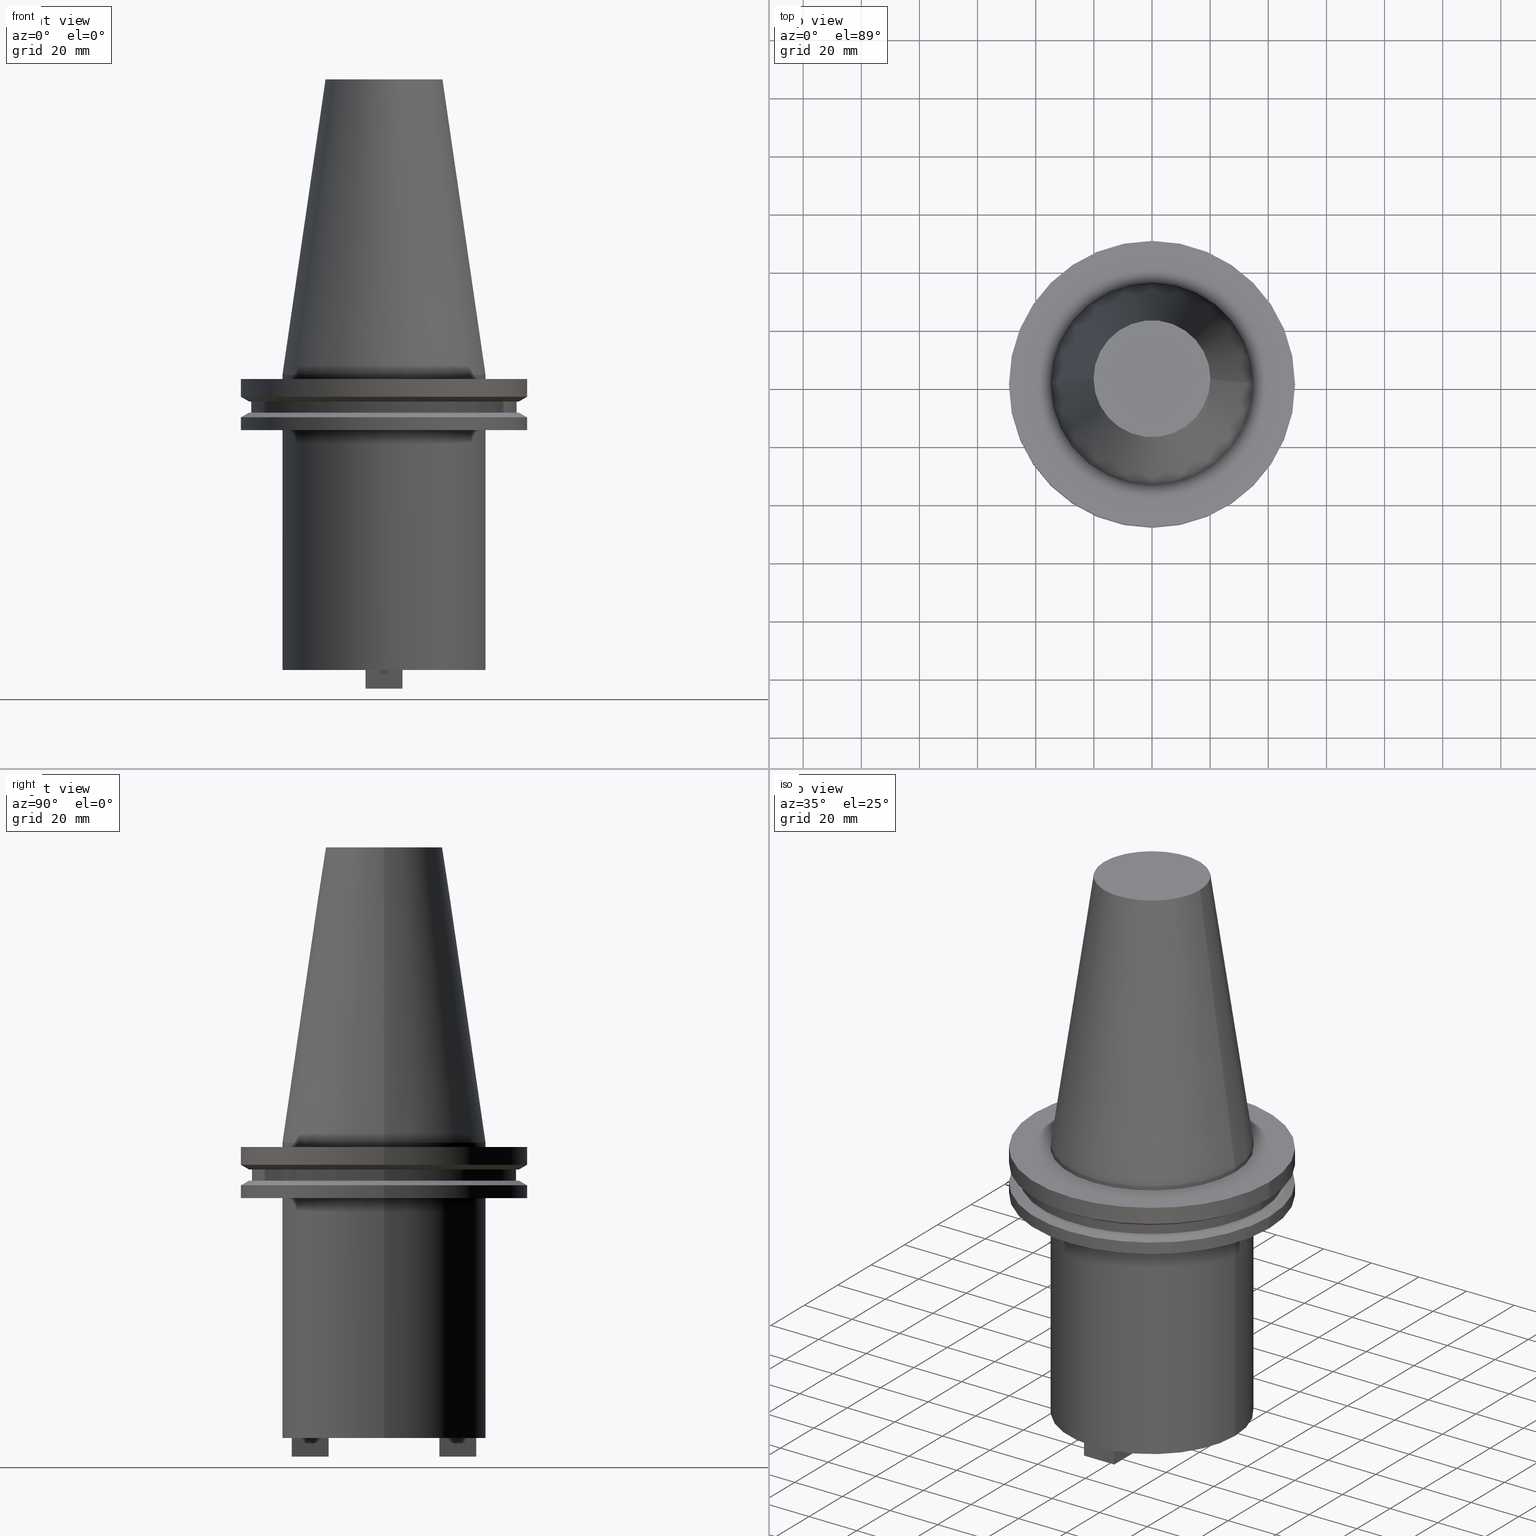
[diagram: canonical four-view strip — front | top / right | iso, engineering-drawing reading convention]
A machine part, canonical four-view strip (front | top / right | iso — engineering-drawing reading convention). The complete STEP part file that produces these views, byte-faithful:
ISO-10303-21;
HEADER;
FILE_DESCRIPTION (( 'STEP AP203' ),
    '1' );
FILE_NAME ('BCV50-SMC1_250-4.stp',
    '2022-03-03T20:05:11',
    ( '' ),
    ( '' ),
    'SwSTEP 2.0',
    'SolidWorks 2021',
    '' );
FILE_SCHEMA (( 'CONFIG_CONTROL_DESIGN' ));
ENDSEC;

DATA;
#1 = AXIS2_PLACEMENT_3D ( 'NONE', #451, #134, #894 ) ;
#2 = ORIENTED_EDGE ( 'NONE', *, *, #38, .T. ) ;
#3 = CIRCLE ( 'NONE', #379, 45.64500000000000313 ) ;
#4 = CARTESIAN_POINT ( 'NONE',  ( -49.21499999999998920, 0.000000000000000000, -14.65761014474876944 ) ) ;
#5 = ADVANCED_FACE ( 'NONE', ( #912 ), #665, .T. ) ;
#6 = DIRECTION ( 'NONE',  ( -0.000000000000000000, -0.000000000000000000, 1.000000000000000000 ) ) ;
#7 = ORIENTED_EDGE ( 'NONE', *, *, #70, .F. ) ;
#8 = APPROVAL_STATUS ( 'not_yet_approved' ) ;
#9 = DIRECTION ( 'NONE',  ( 1.000000000000000000, 0.000000000000000000, 0.000000000000000000 ) ) ;
#10 = CARTESIAN_POINT ( 'NONE',  ( 0.000000000000000000, 0.000000000000000000, -13.05499999999999794 ) ) ;
#11 = VERTEX_POINT ( 'NONE', #372 ) ;
#12 = CYLINDRICAL_SURFACE ( 'NONE', #31, 7.339999999999985647 ) ;
#13 = CARTESIAN_POINT ( 'NONE',  ( -45.64500000000000313, 5.589900314708094957E-15, 101.5999999999999943 ) ) ;
#14 = ORIENTED_EDGE ( 'NONE', *, *, #762, .T. ) ;
#15 = EDGE_CURVE ( 'NONE', #842, #506, #834, .T. ) ;
#16 = VECTOR ( 'NONE', #232, 1000.000000000000000 ) ;
#17 = AXIS2_PLACEMENT_3D ( 'NONE', #396, #561, #863 ) ;
#18 = PLANE ( 'NONE',  #17 ) ;
#19 = CARTESIAN_POINT ( 'NONE',  ( 6.349999999999992539, 31.75000000000000000, -108.0000000000000000 ) ) ;
#20 = EDGE_LOOP ( 'NONE', ( #227, #571, #501, #326 ) ) ;
#21 = CARTESIAN_POINT ( 'NONE',  ( 0.000000000000000000, 20.10819343178871321, 101.5999999999999943 ) ) ;
#22 = CARTESIAN_POINT ( 'NONE',  ( 0.000000000000000000, 0.000000000000000000, -101.5999999999999943 ) ) ;
#23 = ORIENTED_EDGE ( 'NONE', *, *, #238, .F. ) ;
#24 = LINE ( 'NONE', #738, #935 ) ;
#25 = CARTESIAN_POINT ( 'NONE',  ( -6.350000000000003197, 19.04999999999999716, -108.0000000000000000 ) ) ;
#26 = ORIENTED_EDGE ( 'NONE', *, *, #524, .F. ) ;
#28 = AXIS2_PLACEMENT_3D ( 'NONE', #383, #713, #764 ) ;
#27 = PLANE ( 'NONE',  #790 ) ;
#29 = CIRCLE ( 'NONE', #629, 7.340000000000006075 ) ;
#30 = CARTESIAN_POINT ( 'NONE',  ( 6.349999999999994316, 19.05000000000000426, -101.5999999999999943 ) ) ;
#31 = AXIS2_PLACEMENT_3D ( 'NONE', #474, #784, #77 ) ;
#32 = EDGE_CURVE ( 'NONE', #662, #792, #684, .T. ) ;
#33 = ORGANIZATION ( 'UNSPECIFIED', 'UNSPECIFIED', '' ) ;
#34 = DIRECTION ( 'NONE',  ( -0.000000000000000000, -0.000000000000000000, 1.000000000000000000 ) ) ;
#35 = VERTEX_POINT ( 'NONE', #440 ) ;
#36 = CARTESIAN_POINT ( 'NONE',  ( 0.000000000000000000, 0.000000000000000000, 0.000000000000000000 ) ) ;
#37 = DIRECTION ( 'NONE',  ( -1.000000000000000000, -1.365923996832132102E-16, 0.000000000000000000 ) ) ;
#38 = EDGE_CURVE ( 'NONE', #161, #425, #111, .T. ) ;
#39 = DIRECTION ( 'NONE',  ( -0.000000000000000000, -0.000000000000000000, 1.000000000000000000 ) ) ;
#40 = VERTEX_POINT ( 'NONE', #589 ) ;
#41 = CARTESIAN_POINT ( 'NONE',  ( -49.21499999999998920, 6.027099222003697037E-15, 101.5999999999999943 ) ) ;
#42 = PLANE ( 'NONE',  #482 ) ;
#43 = DIRECTION ( 'NONE',  ( 1.000000000000000000, 0.000000000000000000, 0.000000000000000000 ) ) ;
#44 = EDGE_LOOP ( 'NONE', ( #677, #908, #558, #962 ) ) ;
#45 = EDGE_CURVE ( 'NONE', #473, #822, #281, .T. ) ;
#46 = DIRECTION ( 'NONE',  ( -0.000000000000000000, -0.000000000000000000, 1.000000000000000000 ) ) ;
#47 = CIRCLE ( 'NONE', #231, 20.10819343178871321 ) ;
#48 = FACE_OUTER_BOUND ( 'NONE', #291, .T. ) ;
#49 = AXIS2_PLACEMENT_3D ( 'NONE', #179, #327, #883 ) ;
#50 = CARTESIAN_POINT ( 'NONE',  ( 6.349999999999984546, -31.75000000000000711, -101.5999999999999943 ) ) ;
#51 = VECTOR ( 'NONE', #679, 1000.000000000000000 ) ;
#52 = ORIENTED_EDGE ( 'NONE', *, *, #422, .F. ) ;
#53 =( NAMED_UNIT ( * ) PLANE_ANGLE_UNIT ( ) SI_UNIT ( $, .RADIAN. ) );
#54 = PLANE ( 'NONE',  #316 ) ;
#55 = DIRECTION ( 'NONE',  ( 1.000000000000000000, 0.000000000000000000, 0.000000000000000000 ) ) ;
#56 = ORIENTED_EDGE ( 'NONE', *, *, #947, .T. ) ;
#57 = DATE_AND_TIME ( #455, #432 ) ;
#58 = CARTESIAN_POINT ( 'NONE',  ( 6.349999999999984546, -19.05000000000000782, -108.0000000000000000 ) ) ;
#59 = LINE ( 'NONE', #917, #16 ) ;
#60 = ORIENTED_EDGE ( 'NONE', *, *, #230, .T. ) ;
#61 = DIRECTION ( 'NONE',  ( -0.000000000000000000, -0.000000000000000000, 1.000000000000000000 ) ) ;
#62 = AXIS2_PLACEMENT_3D ( 'NONE', #846, #1000, #314 ) ;
#63 = DIRECTION ( 'NONE',  ( -0.000000000000000000, -0.000000000000000000, 1.000000000000000000 ) ) ;
#64 = ADVANCED_FACE ( 'NONE', ( #984 ), #212, .F. ) ;
#65 = AXIS2_PLACEMENT_3D ( 'NONE', #264, #515, #508 ) ;
#66 = EDGE_LOOP ( 'NONE', ( #965, #795, #187, #445 ) ) ;
#67 = SECURITY_CLASSIFICATION ( '', '', #704 ) ;
#68 = DIRECTION ( 'NONE',  ( 1.000000000000000000, 0.000000000000000000, 0.000000000000000000 ) ) ;
#69 = CARTESIAN_POINT ( 'NONE',  ( 0.000000000000000000, 0.000000000000000000, -9.204999999999991189 ) ) ;
#70 = EDGE_CURVE ( 'NONE', #674, #208, #47, .T. ) ;
#71 = ORIENTED_EDGE ( 'NONE', *, *, #238, .T. ) ;
#72 =( NAMED_UNIT ( * ) SI_UNIT ( $, .STERADIAN. ) SOLID_ANGLE_UNIT ( ) );
#73 = CARTESIAN_POINT ( 'NONE',  ( -46.43919780457007818, 5.687161494633754392E-15, -9.204999999999991189 ) ) ;
#74 = CARTESIAN_POINT ( 'NONE',  ( 0.000000000000000000, 0.000000000000000000, 101.5999999999999943 ) ) ;
#75 = ORIENTED_EDGE ( 'NONE', *, *, #947, .F. ) ;
#76 = ADVANCED_FACE ( 'NONE', ( #606 ), #562, .T. ) ;
#77 = DIRECTION ( 'NONE',  ( 1.000000000000000000, 0.000000000000000000, 0.000000000000000000 ) ) ;
#78 = DIRECTION ( 'NONE',  ( 1.000000000000000000, 0.000000000000000000, 0.000000000000000000 ) ) ;
#79 = CIRCLE ( 'NONE', #96, 46.43919780457007818 ) ;
#80 = ORIENTED_EDGE ( 'NONE', *, *, #768, .F. ) ;
#81 = AXIS2_PLACEMENT_3D ( 'NONE', #833, #890, #504 ) ;
#82 = VECTOR ( 'NONE', #253, 1000.000000000000000 ) ;
#83 = ADVANCED_FACE ( 'NONE', ( #108 ), #196, .T. ) ;
#84 = FACE_OUTER_BOUND ( 'NONE', #974, .T. ) ;
#85 = DIRECTION ( 'NONE',  ( 1.000000000000000000, 0.000000000000000000, 0.000000000000000000 ) ) ;
#86 = ORIENTED_EDGE ( 'NONE', *, *, #454, .F. ) ;
#87 = ORIENTED_EDGE ( 'NONE', *, *, #568, .F. ) ;
#88 = FACE_OUTER_BOUND ( 'NONE', #718, .T. ) ;
#89 = FACE_OUTER_BOUND ( 'NONE', #786, .T. ) ;
#90 = ADVANCED_FACE ( 'NONE', ( #826 ), #820, .F. ) ;
#91 = ORIENTED_EDGE ( 'NONE', *, *, #925, .F. ) ;
#92 = DIRECTION ( 'NONE',  ( 1.000000000000000000, 0.000000000000000000, 0.000000000000000000 ) ) ;
#93 = DIRECTION ( 'NONE',  ( 0.000000000000000000, -0.000000000000000000, 1.000000000000000000 ) ) ;
#94 = EDGE_CURVE ( 'NONE', #928, #519, #545, .T. ) ;
#95 = ORIENTED_EDGE ( 'NONE', *, *, #188, .T. ) ;
#96 = AXIS2_PLACEMENT_3D ( 'NONE', #356, #362, #979 ) ;
#97 = AXIS2_PLACEMENT_3D ( 'NONE', #211, #37, #817 ) ;
#98 = AXIS2_PLACEMENT_3D ( 'NONE', #277, #598, #905 ) ;
#99 = CARTESIAN_POINT ( 'NONE',  ( 34.92499999999999716, 0.000000000000000000, -101.5999999999999943 ) ) ;
#100 = DIRECTION ( 'NONE',  ( 1.365923996832132102E-16, -1.000000000000000000, 0.000000000000000000 ) ) ;
#101 = ORIENTED_EDGE ( 'NONE', *, *, #777, .T. ) ;
#102 = LINE ( 'NONE', #283, #133 ) ;
#103 = CARTESIAN_POINT ( 'NONE',  ( -34.92499999999999005, 4.277078946022130098E-15, -1.499999999999987566 ) ) ;
#104 = ORIENTED_EDGE ( 'NONE', *, *, #982, .F. ) ;
#105 = EDGE_CURVE ( 'NONE', #971, #831, #79, .T. ) ;
#106 = CARTESIAN_POINT ( 'NONE',  ( 34.92499999999999005, 4.277078946022130098E-15, 0.000000000000000000 ) ) ;
#107 = CARTESIAN_POINT ( 'NONE',  ( -6.350000000000004974, -31.75000000000000711, -108.0000000000000000 ) ) ;
#108 = FACE_OUTER_BOUND ( 'NONE', #44, .T. ) ;
#109 = EDGE_LOOP ( 'NONE', ( #708, #311 ) ) ;
#111 = CIRCLE ( 'NONE', #447, 7.339999999999985647 ) ;
#110 = DIRECTION ( 'NONE',  ( 0.000000000000000000, 0.000000000000000000, -1.000000000000000000 ) ) ;
#112 = APPLICATION_CONTEXT ( 'configuration controlled 3d designs of mechanical parts and assemblies' ) ;
#113 = EDGE_CURVE ( 'NONE', #862, #359, #601, .T. ) ;
#114 = AXIS2_PLACEMENT_3D ( 'NONE', #191, #270, #439 ) ;
#115 = DIRECTION ( 'NONE',  ( -1.000000000000000000, 0.000000000000000000, 0.000000000000000000 ) ) ;
#116 = AXIS2_PLACEMENT_3D ( 'NONE', #306, #652, #939 ) ;
#117 = CARTESIAN_POINT ( 'NONE',  ( -6.350000000000004974, 31.75000000000000000, -108.0000000000000000 ) ) ;
#118 = EDGE_LOOP ( 'NONE', ( #213, #309 ) ) ;
#119 = DIRECTION ( 'NONE',  ( 0.1443082272672999988, 1.767266086135277066E-17, -0.9895327864921755756 ) ) ;
#120 = FACE_OUTER_BOUND ( 'NONE', #602, .T. ) ;
#121 = CARTESIAN_POINT ( 'NONE',  ( 0.000000000000000000, 0.000000000000000000, 101.5999999999999943 ) ) ;
#122 = CC_DESIGN_DATE_AND_TIME_ASSIGNMENT ( #224, #539, ( #806 ) ) ;
#123 = EDGE_CURVE ( 'NONE', #842, #581, #687, .T. ) ;
#124 = ORIENTED_EDGE ( 'NONE', *, *, #417, .F. ) ;
#125 = LINE ( 'NONE', #815, #694 ) ;
#126 = FACE_OUTER_BOUND ( 'NONE', #410, .T. ) ;
#127 = ORIENTED_EDGE ( 'NONE', *, *, #404, .F. ) ;
#128 = EDGE_LOOP ( 'NONE', ( #950, #80 ) ) ;
#129 = COORDINATED_UNIVERSAL_TIME_OFFSET ( 6, 0, .BEHIND. ) ;
#130 = VECTOR ( 'NONE', #550, 1000.000000000000000 ) ;
#131 = CYLINDRICAL_SURFACE ( 'NONE', #346, 34.92499999999999005 ) ;
#132 = AXIS2_PLACEMENT_3D ( 'NONE', #180, #791, #322 ) ;
#133 = VECTOR ( 'NONE', #206, 1000.000000000000000 ) ;
#134 = DIRECTION ( 'NONE',  ( 0.000000000000000000, -0.000000000000000000, 1.000000000000000000 ) ) ;
#135 = PRODUCT_DEFINITION_FORMATION_WITH_SPECIFIED_SOURCE ( 'ANY', '', #308, .NOT_KNOWN. ) ;
#136 = ORIENTED_EDGE ( 'NONE', *, *, #657, .F. ) ;
#137 = LINE ( 'NONE', #147, #247 ) ;
#138 = CARTESIAN_POINT ( 'NONE',  ( -20.10819343178871321, 0.000000000000000000, 101.5999999999999801 ) ) ;
#139 = ORIENTED_EDGE ( 'NONE', *, *, #141, .F. ) ;
#140 = COORDINATED_UNIVERSAL_TIME_OFFSET ( 6, 0, .BEHIND. ) ;
#141 = EDGE_CURVE ( 'NONE', #252, #968, #246, .T. ) ;
#142 = DIRECTION ( 'NONE',  ( -1.000000000000000000, 0.000000000000000000, 0.000000000000000000 ) ) ;
#143 = CARTESIAN_POINT ( 'NONE',  ( 6.349999999999994316, 19.05000000000000426, -101.5999999999999943 ) ) ;
#144 = PRODUCT_DEFINITION_SHAPE ( 'NONE', 'NONE',  #806 ) ;
#145 = EDGE_LOOP ( 'NONE', ( #690, #836 ) ) ;
#146 = APPLICATION_PROTOCOL_DEFINITION ( 'international standard', 'config_control_design', 1994, #112 ) ;
#147 = CARTESIAN_POINT ( 'NONE',  ( 49.21499999999999631, 0.000000000000000000, 101.5999999999999943 ) ) ;
#148 = EDGE_CURVE ( 'NONE', #469, #161, #377, .T. ) ;
#149 = AXIS2_PLACEMENT_3D ( 'NONE', #461, #6, #150 ) ;
#150 = DIRECTION ( 'NONE',  ( 1.000000000000000000, 0.000000000000000000, 0.000000000000000000 ) ) ;
#151 = AXIS2_PLACEMENT_3D ( 'NONE', #438, #110, #592 ) ;
#152 = ORIENTED_EDGE ( 'NONE', *, *, #976, .F. ) ;
#153 = CONICAL_SURFACE ( 'NONE', #696, 34.92499999999999005, 0.1448138465474119452 ) ;
#154 = PERSON_AND_ORGANIZATION ( #502, #33 ) ;
#155 = FACE_OUTER_BOUND ( 'NONE', #304, .T. ) ;
#156 = CARTESIAN_POINT ( 'NONE',  ( 0.000000000000000000, 0.000000000000000000, -9.204999999999991189 ) ) ;
#157 = EDGE_CURVE ( 'NONE', #624, #662, #218, .T. ) ;
#158 = ORIENTED_EDGE ( 'NONE', *, *, #157, .F. ) ;
#159 = DIRECTION ( 'NONE',  ( -0.000000000000000000, -0.000000000000000000, 1.000000000000000000 ) ) ;
#160 = CYLINDRICAL_SURFACE ( 'NONE', #613, 34.92499999999999005 ) ;
#161 = VERTEX_POINT ( 'NONE', #1009 ) ;
#162 = COORDINATED_UNIVERSAL_TIME_OFFSET ( 6, 0, .BEHIND. ) ;
#163 = ORIENTED_EDGE ( 'NONE', *, *, #722, .T. ) ;
#164 = FACE_OUTER_BOUND ( 'NONE', #566, .T. ) ;
#165 = LINE ( 'NONE', #481, #934 ) ;
#166 = CIRCLE ( 'NONE', #994, 49.21499999999999631 ) ;
#167 = ORIENTED_EDGE ( 'NONE', *, *, #881, .T. ) ;
#168 = CIRCLE ( 'NONE', #632, 49.21499999999998920 ) ;
#169 = LOCAL_TIME ( 14, 5, 11.00000000000000000, #140 ) ;
#170 = VERTEX_POINT ( 'NONE', #927 ) ;
#171 = FACE_OUTER_BOUND ( 'NONE', #437, .T. ) ;
#172 = CARTESIAN_POINT ( 'NONE',  ( 7.339999999999985647, 0.000000000000000000, -35.04999999999999716 ) ) ;
#173 = VERTEX_POINT ( 'NONE', #785 ) ;
#174 = PLANE ( 'NONE',  #332 ) ;
#175 = CC_DESIGN_DATE_AND_TIME_ASSIGNMENT ( #57, #374, ( #67 ) ) ;
#176 = EDGE_CURVE ( 'NONE', #444, #386, #464, .T. ) ;
#177 = LINE ( 'NONE', #717, #818 ) ;
#178 = ORIENTED_EDGE ( 'NONE', *, *, #477, .T. ) ;
#179 = CARTESIAN_POINT ( 'NONE',  ( 0.000000000000000000, 0.000000000000000000, -19.04999999999999716 ) ) ;
#180 = CARTESIAN_POINT ( 'NONE',  ( 0.000000000000000000, 0.000000000000000000, 0.000000000000000000 ) ) ;
#181 = ORIENTED_EDGE ( 'NONE', *, *, #385, .F. ) ;
#182 = CLOSED_SHELL ( 'NONE', ( #867, #251, #83, #698, #331, #485, #906, #559, #988, #324, #76, #783, #825, #633, #435, #516, #507, #843, #370, #730, #5, #746, #574, #811, #64, #90, #599, #491, #299, #913, #548, #798, #850, #955, #1002 ) ) ;
#183 = MANIFOLD_SOLID_BREP ( 'Boss-Extrude1', #182 ) ;
#184 = AXIS2_PLACEMENT_3D ( 'NONE', #489, #649, #244 ) ;
#185 = FACE_OUTER_BOUND ( 'NONE', #276, .T. ) ;
#186 = LINE ( 'NONE', #424, #546 ) ;
#187 = ORIENTED_EDGE ( 'NONE', *, *, #605, .T. ) ;
#188 = EDGE_CURVE ( 'NONE', #40, #822, #59, .T. ) ;
#189 = ORIENTED_EDGE ( 'NONE', *, *, #734, .F. ) ;
#190 = CARTESIAN_POINT ( 'NONE',  ( 6.349999999999984546, -31.75000000000000711, -108.0000000000000000 ) ) ;
#191 = CARTESIAN_POINT ( 'NONE',  ( 0.000000000000000000, 0.000000000000000000, -14.65761014474876944 ) ) ;
#192 = DIRECTION ( 'NONE',  ( 1.000000000000000000, 0.000000000000000000, 0.000000000000000000 ) ) ;
#193 = EDGE_CURVE ( 'NONE', #506, #473, #297, .T. ) ;
#194 = CARTESIAN_POINT ( 'NONE',  ( 49.21499999999998920, 0.000000000000000000, -14.65761014474876944 ) ) ;
#195 = LINE ( 'NONE', #284, #564 ) ;
#196 = CYLINDRICAL_SURFACE ( 'NONE', #646, 49.21499999999999631 ) ;
#197 = EDGE_LOOP ( 'NONE', ( #272, #640, #682, #369 ) ) ;
#198 = AXIS2_PLACEMENT_3D ( 'NONE', #117, #750, #436 ) ;
#199 = FACE_OUTER_BOUND ( 'NONE', #528, .T. ) ;
#200 = CIRCLE ( 'NONE', #49, 49.21499999999998920 ) ;
#201 = EDGE_CURVE ( 'NONE', #205, #258, #313, .T. ) ;
#202 = CARTESIAN_POINT ( 'NONE',  ( 0.000000000000000000, 0.000000000000000000, 101.5999999999999943 ) ) ;
#203 = LOCAL_TIME ( 14, 5, 11.00000000000000000, #162 ) ;
#204 = DIRECTION ( 'NONE',  ( 0.000000000000000000, 0.000000000000000000, -1.000000000000000000 ) ) ;
#205 = VERTEX_POINT ( 'NONE', #457 ) ;
#206 = DIRECTION ( 'NONE',  ( -0.000000000000000000, -0.000000000000000000, 1.000000000000000000 ) ) ;
#207 = LINE ( 'NONE', #521, #233 ) ;
#208 = VERTEX_POINT ( 'NONE', #138 ) ;
#209 = ORIENTED_EDGE ( 'NONE', *, *, #881, .F. ) ;
#210 = APPROVAL_ROLE ( '' ) ;
#211 = CARTESIAN_POINT ( 'NONE',  ( 6.349999999999992539, 31.75000000000000000, -108.0000000000000000 ) ) ;
#212 = PLANE ( 'NONE',  #1 ) ;
#213 = ORIENTED_EDGE ( 'NONE', *, *, #777, .F. ) ;
#214 = PERSON_AND_ORGANIZATION_ROLE ( 'design_owner' ) ;
#215 = CIRCLE ( 'NONE', #28, 34.92499999999999716 ) ;
#216 = CARTESIAN_POINT ( 'NONE',  ( 6.349999999999984546, -31.75000000000000711, -101.5999999999999943 ) ) ;
#217 = AXIS2_PLACEMENT_3D ( 'NONE', #533, #999, #225 ) ;
#218 = LINE ( 'NONE', #932, #480 ) ;
#219 = EDGE_LOOP ( 'NONE', ( #747, #341 ) ) ;
#220 = APPROVAL ( #1007, 'UNSPECIFIED' ) ;
#221 = LINE ( 'NONE', #845, #430 ) ;
#222 = CARTESIAN_POINT ( 'NONE',  ( 34.92499999999999716, 0.000000000000000000, 101.5999999999999943 ) ) ;
#223 = ORIENTED_EDGE ( 'NONE', *, *, #897, .T. ) ;
#224 = DATE_AND_TIME ( #929, #169 ) ;
#225 = DIRECTION ( 'NONE',  ( 1.000000000000000000, 0.000000000000000000, 0.000000000000000000 ) ) ;
#226 = DIRECTION ( 'NONE',  ( 1.000000000000000000, 0.000000000000000000, 0.000000000000000000 ) ) ;
#227 = ORIENTED_EDGE ( 'NONE', *, *, #45, .T. ) ;
#228 = PERSON_AND_ORGANIZATION ( #502, #33 ) ;
#229 = DIRECTION ( 'NONE',  ( -0.000000000000000000, -0.000000000000000000, 1.000000000000000000 ) ) ;
#230 = EDGE_CURVE ( 'NONE', #239, #252, #851, .T. ) ;
#231 = AXIS2_PLACEMENT_3D ( 'NONE', #518, #289, #192 ) ;
#232 = DIRECTION ( 'NONE',  ( -0.000000000000000000, -0.000000000000000000, 1.000000000000000000 ) ) ;
#233 = VECTOR ( 'NONE', #967, 1000.000000000000114 ) ;
#234 = AXIS2_PLACEMENT_3D ( 'NONE', #259, #577, #720 ) ;
#235 = EDGE_LOOP ( 'NONE', ( #919, #441 ) ) ;
#236 = CARTESIAN_POINT ( 'NONE',  ( 34.92499999999999005, 4.277078946022130098E-15, 0.000000000000000000 ) ) ;
#237 = CARTESIAN_POINT ( 'NONE',  ( -49.21499999999999631, 6.027099222003697826E-15, 101.5999999999999943 ) ) ;
#238 = EDGE_CURVE ( 'NONE', #862, #669, #215, .T. ) ;
#239 = VERTEX_POINT ( 'NONE', #397 ) ;
#240 = DIRECTION ( 'NONE',  ( -1.000000000000000000, 0.000000000000000000, -0.000000000000000000 ) ) ;
#241 = CARTESIAN_POINT ( 'NONE',  ( -34.92499999999999716, 4.277078946022130887E-15, -19.04999999999999716 ) ) ;
#242 = ORIENTED_EDGE ( 'NONE', *, *, #925, .T. ) ;
#243 = ORIENTED_EDGE ( 'NONE', *, *, #417, .T. ) ;
#244 = DIRECTION ( 'NONE',  ( 1.000000000000000000, 0.000000000000000000, 0.000000000000000000 ) ) ;
#245 = LINE ( 'NONE', #885, #948 ) ;
#246 = CIRCLE ( 'NONE', #658, 45.64500000000000313 ) ;
#247 = VECTOR ( 'NONE', #456, 1000.000000000000000 ) ;
#248 = ORIENTED_EDGE ( 'NONE', *, *, #176, .T. ) ;
#249 = AXIS2_PLACEMENT_3D ( 'NONE', #973, #900, #673 ) ;
#250 = AXIS2_PLACEMENT_3D ( 'NONE', #431, #442, #753 ) ;
#251 = ADVANCED_FACE ( 'NONE', ( #857 ), #160, .T. ) ;
#252 = VERTEX_POINT ( 'NONE', #537 ) ;
#253 = DIRECTION ( 'NONE',  ( 1.000000000000000000, -1.092739197465706471E-15, -0.000000000000000000 ) ) ;
#254 = CYLINDRICAL_SURFACE ( 'NONE', #995, 45.64500000000000313 ) ;
#255 = ORIENTED_EDGE ( 'NONE', *, *, #157, .T. ) ;
#256 = LINE ( 'NONE', #869, #82 ) ;
#257 = DIRECTION ( 'NONE',  ( -0.000000000000000000, -1.000000000000000000, -0.000000000000000000 ) ) ;
#258 = VERTEX_POINT ( 'NONE', #475 ) ;
#259 = CARTESIAN_POINT ( 'NONE',  ( 0.000000000000000000, 0.000000000000000000, 101.5999999999999943 ) ) ;
#260 = CARTESIAN_POINT ( 'NONE',  ( 0.000000000000000000, 46.43919780457007818, -9.204999999999998295 ) ) ;
#261 = EDGE_CURVE ( 'NONE', #386, #444, #816, .T. ) ;
#262 = EDGE_LOOP ( 'NONE', ( #923, #715 ) ) ;
#263 = AXIS2_PLACEMENT_3D ( 'NONE', #505, #204, #814 ) ;
#264 = CARTESIAN_POINT ( 'NONE',  ( 0.000000000000000000, 0.000000000000000000, -13.05499999999999794 ) ) ;
#265 = APPROVAL_PERSON_ORGANIZATION ( #292, #941, #333 ) ;
#266 = CARTESIAN_POINT ( 'NONE',  ( 0.000000000000000000, 0.000000000000000000, -19.04999999999999716 ) ) ;
#267 = EDGE_CURVE ( 'NONE', #968, #252, #725, .T. ) ;
#268 = ORIENTED_EDGE ( 'NONE', *, *, #722, .F. ) ;
#269 = LINE ( 'NONE', #743, #51 ) ;
#270 = DIRECTION ( 'NONE',  ( 0.000000000000000000, 0.000000000000000000, -1.000000000000000000 ) ) ;
#271 = DIRECTION ( 'NONE',  ( -0.000000000000000000, -0.000000000000000000, 1.000000000000000000 ) ) ;
#272 = ORIENTED_EDGE ( 'NONE', *, *, #751, .T. ) ;
#273 = LINE ( 'NONE', #663, #821 ) ;
#274 = DIRECTION ( 'NONE',  ( 1.000000000000000000, -1.365923996832130130E-16, 0.000000000000000000 ) ) ;
#275 = CARTESIAN_POINT ( 'NONE',  ( -6.350000000000004974, 31.75000000000000000, -101.5999999999999943 ) ) ;
#276 = EDGE_LOOP ( 'NONE', ( #7, #378, #492, #799 ) ) ;
#278 = CIRCLE ( 'NONE', #801, 49.21499999999998920 ) ;
#277 = CARTESIAN_POINT ( 'NONE',  ( 0.000000000000000000, 0.000000000000000000, 101.5999999999999943 ) ) ;
#279 = CIRCLE ( 'NONE', #184, 46.43919780457007818 ) ;
#280 = DIRECTION ( 'NONE',  ( 1.000000000000000000, 0.000000000000000000, 0.000000000000000000 ) ) ;
#281 = LINE ( 'NONE', #275, #689 ) ;
#282 = VERTEX_POINT ( 'NONE', #993 ) ;
#283 = CARTESIAN_POINT ( 'NONE',  ( -34.92499999999999716, 4.277078946022130887E-15, 101.5999999999999943 ) ) ;
#284 = CARTESIAN_POINT ( 'NONE',  ( 6.349999999999984546, -31.75000000000000711, -108.0000000000000000 ) ) ;
#285 = CARTESIAN_POINT ( 'NONE',  ( 6.349999999999994316, 19.05000000000000426, -108.0000000000000000 ) ) ;
#286 = ORIENTED_EDGE ( 'NONE', *, *, #123, .T. ) ;
#287 = PLANE ( 'NONE',  #804 ) ;
#288 = CARTESIAN_POINT ( 'NONE',  ( 20.10819343178871321, 3.369811209154858606E-15, 101.5999999999999801 ) ) ;
#289 = DIRECTION ( 'NONE',  ( -0.000000000000000000, -0.000000000000000000, 1.000000000000000000 ) ) ;
#290 = EDGE_CURVE ( 'NONE', #581, #473, #775, .T. ) ;
#291 = EDGE_LOOP ( 'NONE', ( #462, #778, #87, #868 ) ) ;
#292 = PERSON_AND_ORGANIZATION ( #502, #33 ) ;
#293 = AXIS2_PLACEMENT_3D ( 'NONE', #937, #922, #769 ) ;
#294 = CARTESIAN_POINT ( 'NONE',  ( -6.350000000000003197, -19.04999999999999361, -108.0000000000000000 ) ) ;
#295 = VECTOR ( 'NONE', #749, 1000.000000000000000 ) ;
#296 = VECTOR ( 'NONE', #142, 1000.000000000000000 ) ;
#297 = LINE ( 'NONE', #143, #130 ) ;
#298 = APPROVAL_PERSON_ORGANIZATION ( #625, #523, #531 ) ;
#299 = ADVANCED_FACE ( 'NONE', ( #619 ), #634, .F. ) ;
#300 = ORIENTED_EDGE ( 'NONE', *, *, #970, .T. ) ;
#301 = MECHANICAL_CONTEXT ( 'NONE', #493, 'mechanical' ) ;
#302 = FACE_BOUND ( 'NONE', #109, .T. ) ;
#303 = DIRECTION ( 'NONE',  ( -0.000000000000000000, -0.000000000000000000, 1.000000000000000000 ) ) ;
#304 = EDGE_LOOP ( 'NONE', ( #223, #903, #104, #95 ) ) ;
#305 = EDGE_CURVE ( 'NONE', #928, #205, #702, .T. ) ;
#306 = CARTESIAN_POINT ( 'NONE',  ( 0.000000000000000000, 49.21499999999999631, -1.499999999999992895 ) ) ;
#307 = CARTESIAN_POINT ( 'NONE',  ( 6.349999999999994316, 19.05000000000000426, -108.0000000000000000 ) ) ;
#308 = PRODUCT ( 'BCV50-SMC1_250-4', 'BCV50-SMC1_250-4', '', ( #301 ) ) ;
#309 = ORIENTED_EDGE ( 'NONE', *, *, #105, .F. ) ;
#310 = PERSON_AND_ORGANIZATION ( #502, #33 ) ;
#311 = ORIENTED_EDGE ( 'NONE', *, *, #918, .T. ) ;
#312 = CARTESIAN_POINT ( 'NONE',  ( -45.64500000000000313, 5.589900314708094957E-15, -13.05499999999999794 ) ) ;
#313 = CIRCLE ( 'NONE', #345, 49.21499999999999631 ) ;
#314 = DIRECTION ( 'NONE',  ( 1.000000000000000000, 0.000000000000000000, 0.000000000000000000 ) ) ;
#315 = CIRCLE ( 'NONE', #693, 49.21500000000000341 ) ;
#316 = AXIS2_PLACEMENT_3D ( 'NONE', #375, #371, #686 ) ;
#317 = ORIENTED_EDGE ( 'NONE', *, *, #193, .T. ) ;
#318 = DIRECTION ( 'NONE',  ( 0.000000000000000000, 0.000000000000000000, 1.000000000000000000 ) ) ;
#319 = FACE_BOUND ( 'NONE', #219, .T. ) ;
#320 = ORIENTED_EDGE ( 'NONE', *, *, #807, .T. ) ;
#321 = CYLINDRICAL_SURFACE ( 'NONE', #949, 45.64500000000000313 ) ;
#322 = DIRECTION ( 'NONE',  ( 1.000000000000000000, 0.000000000000000000, 0.000000000000000000 ) ) ;
#323 = EDGE_CURVE ( 'NONE', #258, #205, #166, .T. ) ;
#324 = ADVANCED_FACE ( 'NONE', ( #340, #328, #952, #420 ), #570, .F. ) ;
#325 = EDGE_LOOP ( 'NONE', ( #336, #612, #529, #560 ) ) ;
#326 = ORIENTED_EDGE ( 'NONE', *, *, #290, .T. ) ;
#327 = DIRECTION ( 'NONE',  ( -0.000000000000000000, -0.000000000000000000, 1.000000000000000000 ) ) ;
#328 = FACE_OUTER_BOUND ( 'NONE', #859, .T. ) ;
#329 = AXIS2_PLACEMENT_3D ( 'NONE', #745, #39, #43 ) ;
#330 = VERTEX_POINT ( 'NONE', #802 ) ;
#331 = ADVANCED_FACE ( 'NONE', ( #500 ), #254, .T. ) ;
#332 = AXIS2_PLACEMENT_3D ( 'NONE', #21, #879, #240 ) ;
#333 = APPROVAL_ROLE ( '' ) ;
#334 = FACE_OUTER_BOUND ( 'NONE', #760, .T. ) ;
#335 = CARTESIAN_POINT ( 'NONE',  ( 34.92499999999999716, 0.000000000000000000, -19.04999999999999716 ) ) ;
#336 = ORIENTED_EDGE ( 'NONE', *, *, #568, .T. ) ;
#337 = CC_DESIGN_PERSON_AND_ORGANIZATION_ASSIGNMENT ( #154, #839, ( #135 ) ) ;
#338 = EDGE_CURVE ( 'NONE', #669, #862, #835, .T. ) ;
#339 = CARTESIAN_POINT ( 'NONE',  ( 6.349999999999994316, 19.05000000000000426, -108.0000000000000000 ) ) ;
#340 = FACE_BOUND ( 'NONE', #975, .T. ) ;
#341 = ORIENTED_EDGE ( 'NONE', *, *, #267, .T. ) ;
#342 = DIRECTION ( 'NONE',  ( 1.000000000000000000, 0.000000000000000000, 0.000000000000000000 ) ) ;
#343 = CARTESIAN_POINT ( 'NONE',  ( 0.000000000000000000, 0.000000000000000000, -101.5999999999999943 ) ) ;
#344 = ORIENTED_EDGE ( 'NONE', *, *, #838, .F. ) ;
#345 = AXIS2_PLACEMENT_3D ( 'NONE', #553, #781, #611 ) ;
#346 = AXIS2_PLACEMENT_3D ( 'NONE', #202, #604, #280 ) ;
#347 = VECTOR ( 'NONE', #119, 999.9999999999998863 ) ;
#348 = CARTESIAN_POINT ( 'NONE',  ( -46.43919780457007818, 5.857130358318727293E-15, -9.204999999999991189 ) ) ;
#349 = LOCAL_TIME ( 14, 5, 11.00000000000000000, #991 ) ;
#350 = CARTESIAN_POINT ( 'NONE',  ( 46.43919780457007818, 0.000000000000000000, -9.204999999999991189 ) ) ;
#351 = EDGE_CURVE ( 'NONE', #173, #170, #177, .T. ) ;
#352 = DIRECTION ( 'NONE',  ( -0.000000000000000000, -1.000000000000000000, -0.000000000000000000 ) ) ;
#353 = ORIENTED_EDGE ( 'NONE', *, *, #148, .T. ) ;
#354 = DIRECTION ( 'NONE',  ( 0.000000000000000000, 0.000000000000000000, -1.000000000000000000 ) ) ;
#355 = CARTESIAN_POINT ( 'NONE',  ( 34.92499999999999005, 0.000000000000000000, -1.499999999999987566 ) ) ;
#356 = CARTESIAN_POINT ( 'NONE',  ( 0.000000000000000000, 0.000000000000000000, -9.204999999999991189 ) ) ;
#357 = PRODUCT_RELATED_PRODUCT_CATEGORY ( 'detail', '', ( #308 ) ) ;
#358 = EDGE_CURVE ( 'NONE', #173, #842, #736, .T. ) ;
#359 = VERTEX_POINT ( 'NONE', #335 ) ;
#360 = DIRECTION ( 'NONE',  ( 1.000000000000000000, 0.000000000000000000, 0.000000000000000000 ) ) ;
#361 = CARTESIAN_POINT ( 'NONE',  ( -49.21499999999998920, 6.027099222003697037E-15, -14.65761014474876944 ) ) ;
#362 = DIRECTION ( 'NONE',  ( -0.000000000000000000, -0.000000000000000000, 1.000000000000000000 ) ) ;
#363 = EDGE_LOOP ( 'NONE', ( #554, #373, #608, #268 ) ) ;
#365 = AXIS2_PLACEMENT_3D ( 'NONE', #266, #680, #367 ) ;
#364 = DIRECTION ( 'NONE',  ( 1.000000000000000000, -0.000000000000000000, -0.000000000000000000 ) ) ;
#366 = AXIS2_PLACEMENT_3D ( 'NONE', #520, #898, #342 ) ;
#367 = DIRECTION ( 'NONE',  ( 1.000000000000000000, 0.000000000000000000, 0.000000000000000000 ) ) ;
#368 = CARTESIAN_POINT ( 'NONE',  ( 0.000000000000000000, 0.000000000000000000, -35.04999999999999716 ) ) ;
#369 = ORIENTED_EDGE ( 'NONE', *, *, #762, .F. ) ;
#370 = ADVANCED_FACE ( 'NONE', ( #809, #319 ), #490, .F. ) ;
#371 = DIRECTION ( 'NONE',  ( 0.000000000000000000, -0.000000000000000000, 1.000000000000000000 ) ) ;
#372 = CARTESIAN_POINT ( 'NONE',  ( -6.350000000000004974, -31.75000000000000711, -101.5999999999999943 ) ) ;
#373 = ORIENTED_EDGE ( 'NONE', *, *, #621, .F. ) ;
#374 = DATE_TIME_ROLE ( 'classification_date' ) ;
#375 = CARTESIAN_POINT ( 'NONE',  ( 0.000000000000000000, 49.21499999999998920, -19.04999999999999716 ) ) ;
#376 = EDGE_CURVE ( 'NONE', #590, #239, #3, .T. ) ;
#377 = LINE ( 'NONE', #627, #899 ) ;
#378 = ORIENTED_EDGE ( 'NONE', *, *, #960, .T. ) ;
#379 = AXIS2_PLACEMENT_3D ( 'NONE', #10, #650, #797 ) ;
#380 = LINE ( 'NONE', #683, #711 ) ;
#381 = EDGE_CURVE ( 'NONE', #590, #968, #957, .T. ) ;
#382 = VECTOR ( 'NONE', #926, 1000.000000000000000 ) ;
#383 = CARTESIAN_POINT ( 'NONE',  ( 0.000000000000000000, 0.000000000000000000, -101.5999999999999943 ) ) ;
#384 =( GEOMETRIC_REPRESENTATION_CONTEXT ( 3 ) GLOBAL_UNCERTAINTY_ASSIGNED_CONTEXT ( ( #607 ) ) GLOBAL_UNIT_ASSIGNED_CONTEXT ( ( #526, #53, #72 ) ) REPRESENTATION_CONTEXT ( 'NONE', 'WORKASPACE' ) );
#385 = EDGE_CURVE ( 'NONE', #444, #648, #245, .T. ) ;
#386 = VERTEX_POINT ( 'NONE', #103 ) ;
#387 = CALENDAR_DATE ( 2022, 3, 3 ) ;
#388 = FACE_BOUND ( 'NONE', #262, .T. ) ;
#389 = CARTESIAN_POINT ( 'NONE',  ( -6.350000000000003197, 19.04999999999999716, -108.0000000000000000 ) ) ;
#390 = VERTEX_POINT ( 'NONE', #241 ) ;
#391 = EDGE_CURVE ( 'NONE', #581, #40, #186, .T. ) ;
#392 = DIRECTION ( 'NONE',  ( 0.000000000000000000, 0.000000000000000000, 1.000000000000000000 ) ) ;
#393 = DIRECTION ( 'NONE',  ( -0.8660254037844273833, 1.060575238724893110E-16, 0.5000000000000195399 ) ) ;
#394 = DIRECTION ( 'NONE',  ( -0.000000000000000000, -0.000000000000000000, 1.000000000000000000 ) ) ;
#395 = ORIENTED_EDGE ( 'NONE', *, *, #409, .T. ) ;
#396 = CARTESIAN_POINT ( 'NONE',  ( 6.349999999999984546, -19.05000000000000782, -108.0000000000000000 ) ) ;
#397 = CARTESIAN_POINT ( 'NONE',  ( 45.64500000000000313, 0.000000000000000000, -13.05499999999999794 ) ) ;
#398 = AXIS2_PLACEMENT_3D ( 'NONE', #260, #93, #940 ) ;
#399 = VECTOR ( 'NONE', #61, 1000.000000000000000 ) ;
#400 = ORIENTED_EDGE ( 'NONE', *, *, #267, .F. ) ;
#401 = LOCAL_TIME ( 14, 5, 11.00000000000000000, #544 ) ;
#402 = ORIENTED_EDGE ( 'NONE', *, *, #385, .T. ) ;
#403 = DIRECTION ( 'NONE',  ( -0.000000000000000000, -0.000000000000000000, 1.000000000000000000 ) ) ;
#404 = EDGE_CURVE ( 'NONE', #624, #1001, #865, .T. ) ;
#405 = DIRECTION ( 'NONE',  ( 1.000000000000000000, 0.000000000000000000, 0.000000000000000000 ) ) ;
#406 = ORIENTED_EDGE ( 'NONE', *, *, #381, .F. ) ;
#407 = PLANE ( 'NONE',  #920 ) ;
#408 = DIRECTION ( 'NONE',  ( -0.000000000000000000, -0.000000000000000000, 1.000000000000000000 ) ) ;
#409 = EDGE_CURVE ( 'NONE', #386, #888, #165, .T. ) ;
#410 = EDGE_LOOP ( 'NONE', ( #26, #742, #782, #904 ) ) ;
#411 = CARTESIAN_POINT ( 'NONE',  ( 0.000000000000000000, 0.000000000000000000, 0.000000000000000000 ) ) ;
#412 = DIRECTION ( 'NONE',  ( -0.000000000000000000, -0.000000000000000000, 1.000000000000000000 ) ) ;
#413 = VECTOR ( 'NONE', #534, 1000.000000000000000 ) ;
#414 = AXIS2_PLACEMENT_3D ( 'NONE', #794, #408, #721 ) ;
#415 = ORIENTED_EDGE ( 'NONE', *, *, #970, .F. ) ;
#416 = CONICAL_SURFACE ( 'NONE', #870, 46.43919780457007818, 1.047197551196575205 ) ;
#417 = EDGE_CURVE ( 'NONE', #888, #648, #465, .T. ) ;
#418 = CALENDAR_DATE ( 2022, 3, 3 ) ;
#419 = CARTESIAN_POINT ( 'NONE',  ( 6.349999999999984546, -31.75000000000001421, -101.5999999999999943 ) ) ;
#420 = FACE_BOUND ( 'NONE', #363, .T. ) ;
#421 = ORIENTED_EDGE ( 'NONE', *, *, #960, .F. ) ;
#422 = EDGE_CURVE ( 'NONE', #551, #878, #278, .T. ) ;
#423 = CARTESIAN_POINT ( 'NONE',  ( -49.21500000000000341, 6.027099222003699404E-15, -7.602389855251287187 ) ) ;
#424 = CARTESIAN_POINT ( 'NONE',  ( -6.350000000000004974, 31.75000000000000000, -108.0000000000000000 ) ) ;
#425 = VERTEX_POINT ( 'NONE', #172 ) ;
#426 = CARTESIAN_POINT ( 'NONE',  ( -45.64500000000000313, 5.589900314708094957E-15, -9.204999999999991189 ) ) ;
#427 = CARTESIAN_POINT ( 'NONE',  ( -6.350000000000003197, 19.04999999999999716, -101.5999999999999943 ) ) ;
#428 = DIRECTION ( 'NONE',  ( -0.000000000000000000, -0.000000000000000000, 1.000000000000000000 ) ) ;
#429 = VECTOR ( 'NONE', #707, 1000.000000000000000 ) ;
#430 = VECTOR ( 'NONE', #758, 1000.000000000000000 ) ;
#431 = CARTESIAN_POINT ( 'NONE',  ( 0.000000000000000000, 0.000000000000000000, -35.04999999999999716 ) ) ;
#432 = LOCAL_TIME ( 14, 5, 11.00000000000000000, #129 ) ;
#433 = LINE ( 'NONE', #450, #659 ) ;
#434 = CC_DESIGN_PERSON_AND_ORGANIZATION_ASSIGNMENT ( #986, #214, ( #308 ) ) ;
#435 = ADVANCED_FACE ( 'NONE', ( #89 ), #487, .T. ) ;
#436 = DIRECTION ( 'NONE',  ( -1.365923996832131609E-16, 1.000000000000000000, 0.000000000000000000 ) ) ;
#437 = EDGE_LOOP ( 'NONE', ( #163, #158, #344, #478 ) ) ;
#438 = CARTESIAN_POINT ( 'NONE',  ( 0.000000000000000000, 0.000000000000000000, -108.0000000000000000 ) ) ;
#439 = DIRECTION ( 'NONE',  ( -1.000000000000000000, 0.000000000000000000, 0.000000000000000000 ) ) ;
#440 = CARTESIAN_POINT ( 'NONE',  ( -6.350000000000003197, -19.04999999999999361, -108.0000000000000000 ) ) ;
#441 = ORIENTED_EDGE ( 'NONE', *, *, #376, .F. ) ;
#442 = DIRECTION ( 'NONE',  ( -0.000000000000000000, -0.000000000000000000, 1.000000000000000000 ) ) ;
#443 = DIRECTION ( 'NONE',  ( 1.365923996832130130E-16, 1.000000000000000000, 0.000000000000000000 ) ) ;
#444 = VERTEX_POINT ( 'NONE', #355 ) ;
#445 = ORIENTED_EDGE ( 'NONE', *, *, #201, .F. ) ;
#446 = EDGE_CURVE ( 'NONE', #359, #390, #691, .T. ) ;
#447 = AXIS2_PLACEMENT_3D ( 'NONE', #368, #681, #759 ) ;
#448 = DATE_AND_TIME ( #848, #401 ) ;
#449 = CIRCLE ( 'NONE', #728, 34.92499999999999716 ) ;
#450 = CARTESIAN_POINT ( 'NONE',  ( -6.350000000000004974, -31.75000000000000711, -108.0000000000000000 ) ) ;
#451 = CARTESIAN_POINT ( 'NONE',  ( 0.000000000000000000, 34.92499999999999716, -35.04999999999999716 ) ) ;
#452 = DESIGN_CONTEXT ( 'detailed design', #112, 'design' ) ;
#453 = ORIENTED_EDGE ( 'NONE', *, *, #358, .F. ) ;
#454 = EDGE_CURVE ( 'NONE', #831, #519, #588, .T. ) ;
#455 = CALENDAR_DATE ( 2022, 3, 3 ) ;
#456 = DIRECTION ( 'NONE',  ( -0.000000000000000000, -0.000000000000000000, 1.000000000000000000 ) ) ;
#457 = CARTESIAN_POINT ( 'NONE',  ( -49.21499999999999631, 6.027099222003697826E-15, -1.499999999999987566 ) ) ;
#458 = EDGE_LOOP ( 'NONE', ( #670, #639, #522, #891 ) ) ;
#459 = DIRECTION ( 'NONE',  ( 0.000000000000000000, -0.000000000000000000, 1.000000000000000000 ) ) ;
#460 = CARTESIAN_POINT ( 'NONE',  ( 0.000000000000000000, 0.000000000000000000, -9.204999999999991189 ) ) ;
#461 = CARTESIAN_POINT ( 'NONE',  ( 0.000000000000000000, 0.000000000000000000, -1.499999999999987566 ) ) ;
#462 = ORIENTED_EDGE ( 'NONE', *, *, #705, .T. ) ;
#463 = CARTESIAN_POINT ( 'NONE',  ( 0.000000000000000000, 0.000000000000000000, 0.000000000000000000 ) ) ;
#464 = CIRCLE ( 'NONE', #62, 34.92499999999999005 ) ;
#465 = CIRCLE ( 'NONE', #132, 34.92499999999999005 ) ;
#466 = DIRECTION ( 'NONE',  ( 1.000000000000000000, -1.092739197465706471E-15, -0.000000000000000000 ) ) ;
#467 = AXIS2_PLACEMENT_3D ( 'NONE', #849, #774, #68 ) ;
#468 = DIRECTION ( 'NONE',  ( -0.000000000000000000, -0.000000000000000000, 1.000000000000000000 ) ) ;
#469 = VERTEX_POINT ( 'NONE', #983 ) ;
#470 = DIRECTION ( 'NONE',  ( 0.000000000000000000, -1.000000000000000000, -0.000000000000000000 ) ) ;
#471 = DIRECTION ( 'NONE',  ( 1.000000000000000000, 0.000000000000000000, 0.000000000000000000 ) ) ;
#472 = VERTEX_POINT ( 'NONE', #907 ) ;
#473 = VERTEX_POINT ( 'NONE', #427 ) ;
#474 = CARTESIAN_POINT ( 'NONE',  ( 0.000000000000000000, 0.000000000000000000, 0.000000000000000000 ) ) ;
#475 = CARTESIAN_POINT ( 'NONE',  ( 49.21499999999999631, 0.000000000000000000, -1.499999999999987566 ) ) ;
#476 = ORIENTED_EDGE ( 'NONE', *, *, #897, .F. ) ;
#477 = EDGE_CURVE ( 'NONE', #208, #888, #964, .T. ) ;
#478 = ORIENTED_EDGE ( 'NONE', *, *, #671, .T. ) ;
#479 = DIRECTION ( 'NONE',  ( -0.000000000000000000, -0.000000000000000000, 1.000000000000000000 ) ) ;
#480 = VECTOR ( 'NONE', #542, 1000.000000000000000 ) ;
#481 = CARTESIAN_POINT ( 'NONE',  ( -34.92499999999999005, 4.277078946022130098E-15, 101.5999999999999943 ) ) ;
#482 = AXIS2_PLACEMENT_3D ( 'NONE', #107, #274, #443 ) ;
#483 = CIRCLE ( 'NONE', #250, 7.339999999999985647 ) ;
#484 = ORIENTED_EDGE ( 'NONE', *, *, #586, .F. ) ;
#485 = ADVANCED_FACE ( 'NONE', ( #584 ), #580, .T. ) ;
#486 = DIRECTION ( 'NONE',  ( -0.000000000000000000, -0.000000000000000000, 1.000000000000000000 ) ) ;
#487 = CYLINDRICAL_SURFACE ( 'NONE', #414, 49.21499999999998920 ) ;
#488 = ORIENTED_EDGE ( 'NONE', *, *, #230, .F. ) ;
#489 = CARTESIAN_POINT ( 'NONE',  ( 0.000000000000000000, 0.000000000000000000, -9.204999999999991189 ) ) ;
#490 = PLANE ( 'NONE',  #398 ) ;
#491 = ADVANCED_FACE ( 'NONE', ( #120 ), #829, .F. ) ;
#492 = ORIENTED_EDGE ( 'NONE', *, *, #942, .T. ) ;
#493 = APPLICATION_CONTEXT ( 'configuration controlled 3d designs of mechanical parts and assemblies' ) ;
#494 = CARTESIAN_POINT ( 'NONE',  ( 46.43919780457007818, 0.000000000000000000, -9.204999999999991189 ) ) ;
#495 = CARTESIAN_POINT ( 'NONE',  ( 6.349999999999984546, -31.75000000000000711, -108.0000000000000000 ) ) ;
#496 = AXIS2_PLACEMENT_3D ( 'NONE', #594, #34, #55 ) ;
#497 = VERTEX_POINT ( 'NONE', #527 ) ;
#498 = VECTOR ( 'NONE', #466, 1000.000000000000000 ) ;
#499 = DIRECTION ( 'NONE',  ( -1.000000000000000000, 0.000000000000000000, 0.000000000000000000 ) ) ;
#500 = FACE_OUTER_BOUND ( 'NONE', #770, .T. ) ;
#501 = ORIENTED_EDGE ( 'NONE', *, *, #391, .F. ) ;
#502 = PERSON ( 'UNSPECIFIED', 'UNSPECIFIED', 'UNSPECIFIED', ('UNSPECIFIED'), ('UNSPECIFIED'), ('UNSPECIFIED') ) ;
#503 = DIRECTION ( 'NONE',  ( -0.000000000000000000, -0.000000000000000000, 1.000000000000000000 ) ) ;
#504 = DIRECTION ( 'NONE',  ( -1.000000000000000000, 0.000000000000000000, -0.000000000000000000 ) ) ;
#505 = CARTESIAN_POINT ( 'NONE',  ( 0.000000000000000000, 0.000000000000000000, 0.000000000000000000 ) ) ;
#506 = VERTEX_POINT ( 'NONE', #30 ) ;
#507 = ADVANCED_FACE ( 'NONE', ( #517, #664 ), #813, .F. ) ;
#508 = DIRECTION ( 'NONE',  ( 1.000000000000000000, 0.000000000000000000, 0.000000000000000000 ) ) ;
#509 = CYLINDRICAL_SURFACE ( 'NONE', #249, 34.92499999999999716 ) ;
#510 = DIRECTION ( 'NONE',  ( 1.000000000000000000, 0.000000000000000000, 0.000000000000000000 ) ) ;
#511 = AXIS2_PLACEMENT_3D ( 'NONE', #156, #468, #471 ) ;
#512 = AXIS2_PLACEMENT_3D ( 'NONE', #22, #637, #405 ) ;
#513 = ORIENTED_EDGE ( 'NONE', *, *, #930, .F. ) ;
#514 = AXIS2_PLACEMENT_3D ( 'NONE', #944, #796, #92 ) ;
#515 = DIRECTION ( 'NONE',  ( -0.000000000000000000, -0.000000000000000000, 1.000000000000000000 ) ) ;
#516 = ADVANCED_FACE ( 'NONE', ( #126 ), #615, .T. ) ;
#517 = FACE_BOUND ( 'NONE', #235, .T. ) ;
#518 = CARTESIAN_POINT ( 'NONE',  ( 0.000000000000000000, 0.000000000000000000, 101.5999999999999801 ) ) ;
#519 = VERTEX_POINT ( 'NONE', #668 ) ;
#520 = CARTESIAN_POINT ( 'NONE',  ( 0.000000000000000000, 0.000000000000000000, 101.5999999999999801 ) ) ;
#521 = CARTESIAN_POINT ( 'NONE',  ( 49.21499999999998920, 6.027099222003697037E-15, -14.65761014474876944 ) ) ;
#522 = ORIENTED_EDGE ( 'NONE', *, *, #454, .T. ) ;
#523 = APPROVAL ( #1003, 'UNSPECIFIED' ) ;
#524 = EDGE_CURVE ( 'NONE', #330, #878, #207, .T. ) ;
#525 = VERTEX_POINT ( 'NONE', #824 ) ;
#526 =( LENGTH_UNIT ( ) NAMED_UNIT ( * ) SI_UNIT ( .MILLI., .METRE. ) );
#527 = CARTESIAN_POINT ( 'NONE',  ( -6.350000000000003197, -19.04999999999999716, -101.5999999999999943 ) ) ;
#528 = EDGE_LOOP ( 'NONE', ( #958, #152, #873, #729 ) ) ;
#529 = ORIENTED_EDGE ( 'NONE', *, *, #404, .T. ) ;
#530 = VECTOR ( 'NONE', #271, 1000.000000000000000 ) ;
#531 = APPROVAL_ROLE ( '' ) ;
#532 = CIRCLE ( 'NONE', #678, 34.92499999999999005 ) ;
#533 = CARTESIAN_POINT ( 'NONE',  ( 0.000000000000000000, 0.000000000000000000, -9.204999999999991189 ) ) ;
#534 = DIRECTION ( 'NONE',  ( -0.000000000000000000, -0.000000000000000000, 1.000000000000000000 ) ) ;
#535 = ORIENTED_EDGE ( 'NONE', *, *, #38, .F. ) ;
#536 = DIRECTION ( 'NONE',  ( -0.000000000000000000, -0.000000000000000000, 1.000000000000000000 ) ) ;
#537 = CARTESIAN_POINT ( 'NONE',  ( 45.64500000000000313, 0.000000000000000000, -9.204999999999991189 ) ) ;
#538 = EDGE_LOOP ( 'NONE', ( #830, #543 ) ) ;
#539 = DATE_TIME_ROLE ( 'creation_date' ) ;
#540 = EDGE_CURVE ( 'NONE', #1001, #847, #195, .T. ) ;
#541 = CARTESIAN_POINT ( 'NONE',  ( 7.339999999999985647, 0.000000000000000000, 0.000000000000000000 ) ) ;
#542 = DIRECTION ( 'NONE',  ( -0.000000000000000000, -0.000000000000000000, 1.000000000000000000 ) ) ;
#543 = ORIENTED_EDGE ( 'NONE', *, *, #201, .T. ) ;
#544 = COORDINATED_UNIVERSAL_TIME_OFFSET ( 6, 0, .BEHIND. ) ;
#545 = CIRCLE ( 'NONE', #329, 49.21500000000000341 ) ;
#546 = VECTOR ( 'NONE', #642, 1000.000000000000000 ) ;
#547 = DIRECTION ( 'NONE',  ( 0.000000000000000000, 0.000000000000000000, -1.000000000000000000 ) ) ;
#548 = ADVANCED_FACE ( 'NONE', ( #48 ), #42, .F. ) ;
#549 = CIRCLE ( 'NONE', #514, 45.64500000000000313 ) ;
#550 = DIRECTION ( 'NONE',  ( -1.000000000000000000, -5.463695987328527423E-16, 0.000000000000000000 ) ) ;
#551 = VERTEX_POINT ( 'NONE', #361 ) ;
#552 = DIRECTION ( 'NONE',  ( -0.000000000000000000, -0.000000000000000000, 1.000000000000000000 ) ) ;
#553 = CARTESIAN_POINT ( 'NONE',  ( 0.000000000000000000, 0.000000000000000000, -1.499999999999987566 ) ) ;
#554 = ORIENTED_EDGE ( 'NONE', *, *, #705, .F. ) ;
#555 = DATE_AND_TIME ( #418, #203 ) ;
#556 = DIRECTION ( 'NONE',  ( 1.000000000000000000, 0.000000000000000000, 0.000000000000000000 ) ) ;
#557 = DIRECTION ( 'NONE',  ( -0.000000000000000000, -0.000000000000000000, 1.000000000000000000 ) ) ;
#558 = ORIENTED_EDGE ( 'NONE', *, *, #323, .F. ) ;
#559 = ADVANCED_FACE ( 'NONE', ( #754 ), #509, .T. ) ;
#560 = ORIENTED_EDGE ( 'NONE', *, *, #540, .T. ) ;
#562 = CONICAL_SURFACE ( 'NONE', #263, 34.92499999999999005, 0.1448138465474119452 ) ;
#561 = DIRECTION ( 'NONE',  ( -1.092739197465706668E-15, -1.000000000000000000, 0.000000000000000000 ) ) ;
#563 = DIRECTION ( 'NONE',  ( -0.000000000000000000, -0.000000000000000000, 1.000000000000000000 ) ) ;
#564 = VECTOR ( 'NONE', #115, 1000.000000000000000 ) ;
#565 = CIRCLE ( 'NONE', #467, 7.340000000000006075 ) ;
#566 = EDGE_LOOP ( 'NONE', ( #755, #651, #805, #300 ) ) ;
#567 = ORIENTED_EDGE ( 'NONE', *, *, #290, .F. ) ;
#568 = EDGE_CURVE ( 'NONE', #847, #35, #433, .T. ) ;
#569 = DIRECTION ( 'NONE',  ( -1.000000000000000000, 0.000000000000000000, 0.000000000000000000 ) ) ;
#570 = PLANE ( 'NONE',  #675 ) ;
#571 = ORIENTED_EDGE ( 'NONE', *, *, #188, .F. ) ;
#572 = APPROVAL_DATE_TIME ( #555, #941 ) ;
#573 = CARTESIAN_POINT ( 'NONE',  ( 0.000000000000000000, 0.000000000000000000, 101.5999999999999943 ) ) ;
#574 = ADVANCED_FACE ( 'NONE', ( #978 ), #131, .T. ) ;
#575 = DIRECTION ( 'NONE',  ( -0.000000000000000000, -0.000000000000000000, 1.000000000000000000 ) ) ;
#576 = EDGE_LOOP ( 'NONE', ( #484, #353, #2, #189 ) ) ;
#577 = DIRECTION ( 'NONE',  ( -0.000000000000000000, -0.000000000000000000, 1.000000000000000000 ) ) ;
#578 = DIRECTION ( 'NONE',  ( -0.000000000000000000, -0.000000000000000000, 1.000000000000000000 ) ) ;
#579 = VECTOR ( 'NONE', #394, 1000.000000000000000 ) ;
#580 = CONICAL_SURFACE ( 'NONE', #676, 49.21499999999998920, 1.047197551196554333 ) ;
#581 = VERTEX_POINT ( 'NONE', #25 ) ;
#582 = CIRCLE ( 'NONE', #65, 46.43919780457007818 ) ;
#583 = CYLINDRICAL_SURFACE ( 'NONE', #98, 49.21499999999998920 ) ;
#584 = FACE_OUTER_BOUND ( 'NONE', #628, .T. ) ;
#585 = ORIENTED_EDGE ( 'NONE', *, *, #70, .T. ) ;
#586 = EDGE_CURVE ( 'NONE', #469, #282, #29, .T. ) ;
#587 = DIRECTION ( 'NONE',  ( 1.000000000000000000, 0.000000000000000000, 0.000000000000000000 ) ) ;
#588 = LINE ( 'NONE', #350, #295 ) ;
#589 = CARTESIAN_POINT ( 'NONE',  ( -6.350000000000004974, 31.75000000000000000, -108.0000000000000000 ) ) ;
#590 = VERTEX_POINT ( 'NONE', #312 ) ;
#591 = EDGE_CURVE ( 'NONE', #519, #928, #315, .T. ) ;
#592 = DIRECTION ( 'NONE',  ( -1.000000000000000000, 0.000000000000000000, -0.000000000000000000 ) ) ;
#593 = DIRECTION ( 'NONE',  ( -1.000000000000000000, 0.000000000000000000, 0.000000000000000000 ) ) ;
#594 = CARTESIAN_POINT ( 'NONE',  ( 0.000000000000000000, 0.000000000000000000, 101.5999999999999943 ) ) ;
#595 = ORIENTED_EDGE ( 'NONE', *, *, #874, .F. ) ;
#596 = VECTOR ( 'NONE', #645, 1000.000000000000114 ) ;
#597 = CC_DESIGN_APPROVAL ( #220, ( #806 ) ) ;
#598 = DIRECTION ( 'NONE',  ( -0.000000000000000000, -0.000000000000000000, 1.000000000000000000 ) ) ;
#599 = ADVANCED_FACE ( 'NONE', ( #155 ), #840, .F. ) ;
#600 = CARTESIAN_POINT ( 'NONE',  ( -34.92499999999999005, 0.000000000000000000, 0.000000000000000000 ) ) ;
#601 = LINE ( 'NONE', #222, #579 ) ;
#602 = EDGE_LOOP ( 'NONE', ( #757, #882, #453, #737 ) ) ;
#603 = DIRECTION ( 'NONE',  ( 0.000000000000000000, -0.000000000000000000, 1.000000000000000000 ) ) ;
#604 = DIRECTION ( 'NONE',  ( -0.000000000000000000, -0.000000000000000000, 1.000000000000000000 ) ) ;
#605 = EDGE_CURVE ( 'NONE', #519, #258, #137, .T. ) ;
#606 = FACE_OUTER_BOUND ( 'NONE', #660, .T. ) ;
#607 = UNCERTAINTY_MEASURE_WITH_UNIT (LENGTH_MEASURE( 1.000000000000000082E-05 ), #526, 'distance_accuracy_value', 'NONE');
#608 = ORIENTED_EDGE ( 'NONE', *, *, #32, .F. ) ;
#609 = APPLICATION_PROTOCOL_DEFINITION ( 'international standard', 'config_control_design', 1994, #493 ) ;
#610 = FACE_OUTER_BOUND ( 'NONE', #458, .T. ) ;
#611 = DIRECTION ( 'NONE',  ( 1.000000000000000000, 0.000000000000000000, 0.000000000000000000 ) ) ;
#612 = ORIENTED_EDGE ( 'NONE', *, *, #838, .T. ) ;
#613 = AXIS2_PLACEMENT_3D ( 'NONE', #74, #303, #78 ) ;
#615 = CONICAL_SURFACE ( 'NONE', #114, 49.21499999999998920, 1.047197551196554333 ) ;
#614 = PERSON_AND_ORGANIZATION_ROLE ( 'creator' ) ;
#616 = CIRCLE ( 'NONE', #886, 46.43919780457007818 ) ;
#617 = DIRECTION ( 'NONE',  ( 1.000000000000000000, 0.000000000000000000, 0.000000000000000000 ) ) ;
#618 = APPROVAL_PERSON_ORGANIZATION ( #924, #220, #210 ) ;
#619 = FACE_OUTER_BOUND ( 'NONE', #733, .T. ) ;
#620 = ORIENTED_EDGE ( 'NONE', *, *, #688, .T. ) ;
#621 = EDGE_CURVE ( 'NONE', #792, #11, #763, .T. ) ;
#622 = CARTESIAN_POINT ( 'NONE',  ( 0.000000000000000000, 0.000000000000000000, -14.65761014474876944 ) ) ;
#623 = DIRECTION ( 'NONE',  ( -1.000000000000000000, -5.463695987328527423E-16, 0.000000000000000000 ) ) ;
#624 = VERTEX_POINT ( 'NONE', #58 ) ;
#625 = PERSON_AND_ORGANIZATION ( #502, #33 ) ;
#626 = PLANE ( 'NONE',  #116 ) ;
#627 = CARTESIAN_POINT ( 'NONE',  ( -7.339999999999985647, 8.988907505741556088E-16, 0.000000000000000000 ) ) ;
#628 = EDGE_LOOP ( 'NONE', ( #209, #827, #620, #595 ) ) ;
#629 = AXIS2_PLACEMENT_3D ( 'NONE', #343, #656, #767 ) ;
#630 = ORIENTED_EDGE ( 'NONE', *, *, #338, .F. ) ;
#631 = CARTESIAN_POINT ( 'NONE',  ( 6.349999999999984546, -19.05000000000001137, -101.5999999999999943 ) ) ;
#632 = AXIS2_PLACEMENT_3D ( 'NONE', #622, #552, #617 ) ;
#633 = ADVANCED_FACE ( 'NONE', ( #780, #302 ), #54, .F. ) ;
#634 = PLANE ( 'NONE',  #293 ) ;
#635 = VERTEX_POINT ( 'NONE', #695 ) ;
#636 = CARTESIAN_POINT ( 'NONE',  ( -6.350000000000004974, 31.75000000000000000, -101.5999999999999943 ) ) ;
#637 = DIRECTION ( 'NONE',  ( -0.000000000000000000, -0.000000000000000000, 1.000000000000000000 ) ) ;
#638 = EDGE_CURVE ( 'NONE', #971, #928, #1008, .T. ) ;
#639 = ORIENTED_EDGE ( 'NONE', *, *, #105, .T. ) ;
#640 = ORIENTED_EDGE ( 'NONE', *, *, #930, .T. ) ;
#641 = LINE ( 'NONE', #789, #772 ) ;
#642 = DIRECTION ( 'NONE',  ( -1.365923996832131116E-16, 1.000000000000000000, -0.000000000000000000 ) ) ;
#643 = ORIENTED_EDGE ( 'NONE', *, *, #113, .F. ) ;
#644 = EDGE_LOOP ( 'NONE', ( #71, #242, #933, #643 ) ) ;
#646 = AXIS2_PLACEMENT_3D ( 'NONE', #121, #428, #510 ) ;
#645 = DIRECTION ( 'NONE',  ( -0.8660254037844169472, 0.000000000000000000, -0.5000000000000375255 ) ) ;
#647 = DIRECTION ( 'NONE',  ( 1.000000000000000000, 0.000000000000000000, 0.000000000000000000 ) ) ;
#648 = VERTEX_POINT ( 'NONE', #236 ) ;
#649 = DIRECTION ( 'NONE',  ( -0.000000000000000000, -0.000000000000000000, 1.000000000000000000 ) ) ;
#650 = DIRECTION ( 'NONE',  ( -0.000000000000000000, -0.000000000000000000, 1.000000000000000000 ) ) ;
#651 = ORIENTED_EDGE ( 'NONE', *, *, #739, .F. ) ;
#652 = DIRECTION ( 'NONE',  ( 0.000000000000000000, 0.000000000000000000, -1.000000000000000000 ) ) ;
#653 = DIRECTION ( 'NONE',  ( 0.000000000000000000, -0.000000000000000000, 1.000000000000000000 ) ) ;
#654 = ORIENTED_EDGE ( 'NONE', *, *, #338, .T. ) ;
#655 = DIRECTION ( 'NONE',  ( -0.000000000000000000, -0.000000000000000000, 1.000000000000000000 ) ) ;
#656 = DIRECTION ( 'NONE',  ( -0.000000000000000000, -0.000000000000000000, 1.000000000000000000 ) ) ;
#657 = EDGE_CURVE ( 'NONE', #1001, #792, #380, .T. ) ;
#658 = AXIS2_PLACEMENT_3D ( 'NONE', #69, #1005, #226 ) ;
#659 = VECTOR ( 'NONE', #744, 1000.000000000000000 ) ;
#660 = EDGE_LOOP ( 'NONE', ( #421, #75, #178, #243 ) ) ;
#661 = CONICAL_SURFACE ( 'NONE', #217, 46.43919780457007818, 1.047197551196575205 ) ;
#662 = VERTEX_POINT ( 'NONE', #631 ) ;
#663 = CARTESIAN_POINT ( 'NONE',  ( -6.350000000000004974, -31.75000000000000711, -108.0000000000000000 ) ) ;
#664 = FACE_OUTER_BOUND ( 'NONE', #810, .T. ) ;
#665 = CYLINDRICAL_SURFACE ( 'NONE', #496, 49.21499999999999631 ) ;
#666 = EDGE_LOOP ( 'NONE', ( #415, #535 ) ) ;
#667 = CARTESIAN_POINT ( 'NONE',  ( 6.349999999999984546, -31.75000000000000711, -108.0000000000000000 ) ) ;
#668 = CARTESIAN_POINT ( 'NONE',  ( 49.21500000000000341, 0.000000000000000000, -7.602389855251287187 ) ) ;
#669 = VERTEX_POINT ( 'NONE', #992 ) ;
#670 = ORIENTED_EDGE ( 'NONE', *, *, #638, .F. ) ;
#671 = EDGE_CURVE ( 'NONE', #35, #497, #987, .T. ) ;
#672 = LINE ( 'NONE', #106, #347 ) ;
#673 = DIRECTION ( 'NONE',  ( 1.000000000000000000, 0.000000000000000000, 0.000000000000000000 ) ) ;
#674 = VERTEX_POINT ( 'NONE', #288 ) ;
#675 = AXIS2_PLACEMENT_3D ( 'NONE', #732, #653, #647 ) ;
#676 = AXIS2_PLACEMENT_3D ( 'NONE', #740, #893, #593 ) ;
#677 = ORIENTED_EDGE ( 'NONE', *, *, #591, .T. ) ;
#678 = AXIS2_PLACEMENT_3D ( 'NONE', #892, #503, #360 ) ;
#679 = DIRECTION ( 'NONE',  ( 1.000000000000000000, -0.000000000000000000, -0.000000000000000000 ) ) ;
#680 = DIRECTION ( 'NONE',  ( -0.000000000000000000, -0.000000000000000000, 1.000000000000000000 ) ) ;
#681 = DIRECTION ( 'NONE',  ( -0.000000000000000000, -0.000000000000000000, 1.000000000000000000 ) ) ;
#682 = ORIENTED_EDGE ( 'NONE', *, *, #688, .F. ) ;
#683 = CARTESIAN_POINT ( 'NONE',  ( 6.349999999999984546, -31.75000000000000711, -108.0000000000000000 ) ) ;
#684 = LINE ( 'NONE', #50, #787 ) ;
#685 = ORIENTED_EDGE ( 'NONE', *, *, #123, .F. ) ;
#686 = DIRECTION ( 'NONE',  ( 1.000000000000000000, 0.000000000000000000, 0.000000000000000000 ) ) ;
#687 = LINE ( 'NONE', #307, #756 ) ;
#688 = EDGE_CURVE ( 'NONE', #878, #551, #168, .T. ) ;
#689 = VECTOR ( 'NONE', #989, 1000.000000000000000 ) ;
#690 = ORIENTED_EDGE ( 'NONE', *, *, #739, .T. ) ;
#691 = CIRCLE ( 'NONE', #365, 34.92499999999999716 ) ;
#693 = AXIS2_PLACEMENT_3D ( 'NONE', #936, #229, #706 ) ;
#692 = DATE_AND_TIME ( #387, #349 ) ;
#694 = VECTOR ( 'NONE', #972, 1000.000000000000000 ) ;
#695 = CARTESIAN_POINT ( 'NONE',  ( -46.43919780457007818, 0.000000000000000000, -13.05499999999999794 ) ) ;
#696 = AXIS2_PLACEMENT_3D ( 'NONE', #36, #354, #499 ) ;
#697 = CARTESIAN_POINT ( 'NONE',  ( 0.000000000000000000, 0.000000000000000000, -1.499999999999987566 ) ) ;
#698 = ADVANCED_FACE ( 'NONE', ( #860 ), #416, .T. ) ;
#699 = ORIENTED_EDGE ( 'NONE', *, *, #358, .T. ) ;
#700 = DIRECTION ( 'NONE',  ( 1.000000000000000000, 0.000000000000000000, -0.000000000000000000 ) ) ;
#701 = FACE_OUTER_BOUND ( 'NONE', #538, .T. ) ;
#702 = LINE ( 'NONE', #237, #709 ) ;
#703 = ORIENTED_EDGE ( 'NONE', *, *, #591, .F. ) ;
#704 = SECURITY_CLASSIFICATION_LEVEL ( 'unclassified' ) ;
#705 = EDGE_CURVE ( 'NONE', #11, #497, #221, .T. ) ;
#706 = DIRECTION ( 'NONE',  ( 1.000000000000000000, 0.000000000000000000, 0.000000000000000000 ) ) ;
#707 = DIRECTION ( 'NONE',  ( -0.000000000000000000, -0.000000000000000000, 1.000000000000000000 ) ) ;
#708 = ORIENTED_EDGE ( 'NONE', *, *, #446, .T. ) ;
#709 = VECTOR ( 'NONE', #63, 1000.000000000000000 ) ;
#710 = LINE ( 'NONE', #4, #596 ) ;
#711 = VECTOR ( 'NONE', #536, 1000.000000000000000 ) ;
#712 = CC_DESIGN_APPROVAL ( #523, ( #135 ) ) ;
#713 = DIRECTION ( 'NONE',  ( -0.000000000000000000, -0.000000000000000000, 1.000000000000000000 ) ) ;
#714 = ORIENTED_EDGE ( 'NONE', *, *, #391, .T. ) ;
#715 = ORIENTED_EDGE ( 'NONE', *, *, #261, .F. ) ;
#716 = CYLINDRICAL_SURFACE ( 'NONE', #819, 7.339999999999985647 ) ;
#717 = CARTESIAN_POINT ( 'NONE',  ( 6.349999999999992539, 31.75000000000000000, -108.0000000000000000 ) ) ;
#718 = EDGE_LOOP ( 'NONE', ( #765, #136, #127, #255 ) ) ;
#719 = SHAPE_DEFINITION_REPRESENTATION ( #144, #864 ) ;
#720 = DIRECTION ( 'NONE',  ( 1.000000000000000000, 0.000000000000000000, 0.000000000000000000 ) ) ;
#721 = DIRECTION ( 'NONE',  ( 1.000000000000000000, 0.000000000000000000, 0.000000000000000000 ) ) ;
#722 = EDGE_CURVE ( 'NONE', #497, #662, #1004, .T. ) ;
#723 = ORIENTED_EDGE ( 'NONE', *, *, #409, .F. ) ;
#725 = CIRCLE ( 'NONE', #511, 45.64500000000000313 ) ;
#724 = DIRECTION ( 'NONE',  ( -0.000000000000000000, -0.000000000000000000, 1.000000000000000000 ) ) ;
#726 = VECTOR ( 'NONE', #100, 1000.000000000000000 ) ;
#727 = DIRECTION ( 'NONE',  ( -0.000000000000000000, -0.000000000000000000, 1.000000000000000000 ) ) ;
#728 = AXIS2_PLACEMENT_3D ( 'NONE', #966, #808, #587 ) ;
#729 = ORIENTED_EDGE ( 'NONE', *, *, #657, .T. ) ;
#730 = ADVANCED_FACE ( 'NONE', ( #610 ), #661, .T. ) ;
#731 = FACE_OUTER_BOUND ( 'NONE', #996, .T. ) ;
#732 = CARTESIAN_POINT ( 'NONE',  ( 0.000000000000000000, 34.92499999999999716, -101.5999999999999943 ) ) ;
#733 = EDGE_LOOP ( 'NONE', ( #317, #567, #685, #752 ) ) ;
#734 = EDGE_CURVE ( 'NONE', #282, #425, #931, .T. ) ;
#735 = DIRECTION ( 'NONE',  ( 1.000000000000000000, 0.000000000000000000, 0.000000000000000000 ) ) ;
#736 = LINE ( 'NONE', #19, #726 ) ;
#737 = ORIENTED_EDGE ( 'NONE', *, *, #351, .T. ) ;
#738 = CARTESIAN_POINT ( 'NONE',  ( 6.349999999999992539, 31.75000000000000000, -101.5999999999999943 ) ) ;
#739 = EDGE_CURVE ( 'NONE', #282, #469, #565, .T. ) ;
#740 = CARTESIAN_POINT ( 'NONE',  ( 0.000000000000000000, 0.000000000000000000, -14.65761014474876944 ) ) ;
#741 = EDGE_LOOP ( 'NONE', ( #248, #395, #1006, #181 ) ) ;
#742 = ORIENTED_EDGE ( 'NONE', *, *, #887, .F. ) ;
#743 = CARTESIAN_POINT ( 'NONE',  ( 6.349999999999992539, 31.75000000000000000, -108.0000000000000000 ) ) ;
#744 = DIRECTION ( 'NONE',  ( 1.365923996832130130E-16, 1.000000000000000000, 0.000000000000000000 ) ) ;
#745 = CARTESIAN_POINT ( 'NONE',  ( 0.000000000000000000, 0.000000000000000000, -7.602389855251287187 ) ) ;
#746 = ADVANCED_FACE ( 'NONE', ( #388, #701 ), #626, .F. ) ;
#747 = ORIENTED_EDGE ( 'NONE', *, *, #141, .T. ) ;
#748 = LINE ( 'NONE', #41, #855 ) ;
#749 = DIRECTION ( 'NONE',  ( 0.8660254037844273833, 0.000000000000000000, 0.5000000000000195399 ) ) ;
#750 = DIRECTION ( 'NONE',  ( 1.000000000000000000, 1.365923996832131609E-16, 0.000000000000000000 ) ) ;
#751 = EDGE_CURVE ( 'NONE', #472, #525, #837, .T. ) ;
#752 = ORIENTED_EDGE ( 'NONE', *, *, #15, .T. ) ;
#753 = DIRECTION ( 'NONE',  ( 1.000000000000000000, 0.000000000000000000, 0.000000000000000000 ) ) ;
#754 = FACE_OUTER_BOUND ( 'NONE', #644, .T. ) ;
#755 = ORIENTED_EDGE ( 'NONE', *, *, #148, .F. ) ;
#756 = VECTOR ( 'NONE', #623, 1000.000000000000000 ) ;
#757 = ORIENTED_EDGE ( 'NONE', *, *, #954, .T. ) ;
#758 = DIRECTION ( 'NONE',  ( 1.365923996832130130E-16, 1.000000000000000000, 0.000000000000000000 ) ) ;
#759 = DIRECTION ( 'NONE',  ( 1.000000000000000000, 0.000000000000000000, 0.000000000000000000 ) ) ;
#760 = EDGE_LOOP ( 'NONE', ( #91, #654, #990, #953 ) ) ;
#761 = CARTESIAN_POINT ( 'NONE',  ( 0.000000000000000000, 0.000000000000000000, -108.0000000000000000 ) ) ;
#762 = EDGE_CURVE ( 'NONE', #472, #878, #641, .T. ) ;
#763 = LINE ( 'NONE', #216, #296 ) ;
#764 = DIRECTION ( 'NONE',  ( 1.000000000000000000, 0.000000000000000000, 0.000000000000000000 ) ) ;
#765 = ORIENTED_EDGE ( 'NONE', *, *, #32, .T. ) ;
#766 = FACE_OUTER_BOUND ( 'NONE', #325, .T. ) ;
#767 = DIRECTION ( 'NONE',  ( 1.000000000000000000, 0.000000000000000000, 0.000000000000000000 ) ) ;
#768 = EDGE_CURVE ( 'NONE', #525, #472, #200, .T. ) ;
#769 = DIRECTION ( 'NONE',  ( -1.000000000000000000, -5.463695987328527423E-16, 0.000000000000000000 ) ) ;
#770 = EDGE_LOOP ( 'NONE', ( #320, #875, #139, #488 ) ) ;
#771 = VECTOR ( 'NONE', #578, 1000.000000000000000 ) ;
#772 = VECTOR ( 'NONE', #724, 1000.000000000000000 ) ;
#773 = CC_DESIGN_SECURITY_CLASSIFICATION ( #67, ( #135 ) ) ;
#774 = DIRECTION ( 'NONE',  ( -0.000000000000000000, -0.000000000000000000, 1.000000000000000000 ) ) ;
#775 = LINE ( 'NONE', #389, #429 ) ;
#776 = CC_DESIGN_PERSON_AND_ORGANIZATION_ASSIGNMENT ( #844, #854, ( #806 ) ) ;
#777 = EDGE_CURVE ( 'NONE', #831, #971, #279, .T. ) ;
#778 = ORIENTED_EDGE ( 'NONE', *, *, #671, .F. ) ;
#779 = APPROVAL_DATE_TIME ( #448, #523 ) ;
#780 = FACE_OUTER_BOUND ( 'NONE', #128, .T. ) ;
#781 = DIRECTION ( 'NONE',  ( -0.000000000000000000, -0.000000000000000000, 1.000000000000000000 ) ) ;
#782 = ORIENTED_EDGE ( 'NONE', *, *, #874, .T. ) ;
#783 = ADVANCED_FACE ( 'NONE', ( #84 ), #174, .F. ) ;
#784 = DIRECTION ( 'NONE',  ( -0.000000000000000000, -0.000000000000000000, 1.000000000000000000 ) ) ;
#785 = CARTESIAN_POINT ( 'NONE',  ( 6.349999999999992539, 31.75000000000000000, -108.0000000000000000 ) ) ;
#786 = EDGE_LOOP ( 'NONE', ( #513, #980, #14, #52 ) ) ;
#787 = VECTOR ( 'NONE', #352, 1000.000000000000000 ) ;
#788 = ORIENTED_EDGE ( 'NONE', *, *, #954, .F. ) ;
#789 = CARTESIAN_POINT ( 'NONE',  ( 49.21499999999998920, 0.000000000000000000, 101.5999999999999943 ) ) ;
#790 = AXIS2_PLACEMENT_3D ( 'NONE', #190, #812, #603 ) ;
#791 = DIRECTION ( 'NONE',  ( -0.000000000000000000, -0.000000000000000000, 1.000000000000000000 ) ) ;
#792 = VERTEX_POINT ( 'NONE', #419 ) ;
#793 = CARTESIAN_POINT ( 'NONE',  ( -6.350000000000004974, -31.75000000000000711, -108.0000000000000000 ) ) ;
#794 = CARTESIAN_POINT ( 'NONE',  ( 0.000000000000000000, 0.000000000000000000, 101.5999999999999943 ) ) ;
#795 = ORIENTED_EDGE ( 'NONE', *, *, #94, .T. ) ;
#796 = DIRECTION ( 'NONE',  ( -0.000000000000000000, -0.000000000000000000, 1.000000000000000000 ) ) ;
#797 = DIRECTION ( 'NONE',  ( 1.000000000000000000, 0.000000000000000000, 0.000000000000000000 ) ) ;
#798 = ADVANCED_FACE ( 'NONE', ( #171 ), #18, .F. ) ;
#799 = ORIENTED_EDGE ( 'NONE', *, *, #477, .F. ) ;
#800 = DIRECTION ( 'NONE',  ( 1.000000000000000000, 0.000000000000000000, 0.000000000000000000 ) ) ;
#801 = AXIS2_PLACEMENT_3D ( 'NONE', #945, #563, #872 ) ;
#802 = CARTESIAN_POINT ( 'NONE',  ( 46.43919780457007818, 5.857130358318725715E-15, -13.05499999999999794 ) ) ;
#803 = CIRCLE ( 'NONE', #366, 20.10819343178871321 ) ;
#804 = AXIS2_PLACEMENT_3D ( 'NONE', #761, #459, #700 ) ;
#805 = ORIENTED_EDGE ( 'NONE', *, *, #734, .T. ) ;
#806 = PRODUCT_DEFINITION ( 'UNKNOWN', '', #135, #452 ) ;
#807 = EDGE_CURVE ( 'NONE', #239, #590, #549, .T. ) ;
#808 = DIRECTION ( 'NONE',  ( -0.000000000000000000, -0.000000000000000000, 1.000000000000000000 ) ) ;
#809 = FACE_OUTER_BOUND ( 'NONE', #118, .T. ) ;
#810 = EDGE_LOOP ( 'NONE', ( #938, #167 ) ) ;
#811 = ADVANCED_FACE ( 'NONE', ( #164 ), #716, .F. ) ;
#812 = DIRECTION ( 'NONE',  ( 0.000000000000000000, 1.000000000000000000, 0.000000000000000000 ) ) ;
#813 = PLANE ( 'NONE',  #81 ) ;
#814 = DIRECTION ( 'NONE',  ( -1.000000000000000000, 0.000000000000000000, 0.000000000000000000 ) ) ;
#815 = CARTESIAN_POINT ( 'NONE',  ( 6.349999999999992539, 31.75000000000000000, -101.5999999999999943 ) ) ;
#816 = CIRCLE ( 'NONE', #149, 34.92499999999999005 ) ;
#817 = DIRECTION ( 'NONE',  ( 1.365923996832132102E-16, -1.000000000000000000, 0.000000000000000000 ) ) ;
#818 = VECTOR ( 'NONE', #727, 1000.000000000000000 ) ;
#819 = AXIS2_PLACEMENT_3D ( 'NONE', #411, #403, #9 ) ;
#820 = PLANE ( 'NONE',  #198 ) ;
#821 = VECTOR ( 'NONE', #46, 1000.000000000000000 ) ;
#822 = VERTEX_POINT ( 'NONE', #636 ) ;
#823 = FACE_OUTER_BOUND ( 'NONE', #985, .T. ) ;
#824 = CARTESIAN_POINT ( 'NONE',  ( -49.21499999999998920, 6.027099222003697037E-15, -19.04999999999999716 ) ) ;
#825 = ADVANCED_FACE ( 'NONE', ( #334 ), #956, .T. ) ;
#826 = FACE_OUTER_BOUND ( 'NONE', #20, .T. ) ;
#827 = ORIENTED_EDGE ( 'NONE', *, *, #524, .T. ) ;
#828 = CARTESIAN_POINT ( 'NONE',  ( -34.92499999999999005, 0.000000000000000000, 0.000000000000000000 ) ) ;
#829 = PLANE ( 'NONE',  #97 ) ;
#830 = ORIENTED_EDGE ( 'NONE', *, *, #323, .T. ) ;
#831 = VERTEX_POINT ( 'NONE', #494 ) ;
#832 = APPROVAL_DATE_TIME ( #692, #220 ) ;
#833 = CARTESIAN_POINT ( 'NONE',  ( 0.000000000000000000, 45.64500000000000313, -13.05499999999999794 ) ) ;
#834 = LINE ( 'NONE', #285, #530 ) ;
#835 = CIRCLE ( 'NONE', #512, 34.92499999999999716 ) ;
#836 = ORIENTED_EDGE ( 'NONE', *, *, #586, .T. ) ;
#837 = CIRCLE ( 'NONE', #902, 49.21499999999998920 ) ;
#838 = EDGE_CURVE ( 'NONE', #35, #624, #256, .T. ) ;
#839 = PERSON_AND_ORGANIZATION_ROLE ( 'design_supplier' ) ;
#840 = PLANE ( 'NONE',  #884 ) ;
#841 = DIRECTION ( 'NONE',  ( -0.000000000000000000, -0.000000000000000000, 1.000000000000000000 ) ) ;
#842 = VERTEX_POINT ( 'NONE', #339 ) ;
#843 = ADVANCED_FACE ( 'NONE', ( #731 ), #321, .T. ) ;
#844 = PERSON_AND_ORGANIZATION ( #502, #33 ) ;
#845 = CARTESIAN_POINT ( 'NONE',  ( -6.350000000000004974, -31.75000000000000711, -101.5999999999999943 ) ) ;
#846 = CARTESIAN_POINT ( 'NONE',  ( 0.000000000000000000, 0.000000000000000000, -1.499999999999987566 ) ) ;
#847 = VERTEX_POINT ( 'NONE', #793 ) ;
#848 = CALENDAR_DATE ( 2022, 3, 3 ) ;
#849 = CARTESIAN_POINT ( 'NONE',  ( 0.000000000000000000, 0.000000000000000000, -101.5999999999999943 ) ) ;
#850 = ADVANCED_FACE ( 'NONE', ( #88 ), #407, .F. ) ;
#851 = LINE ( 'NONE', #861, #413 ) ;
#852 = ORIENTED_EDGE ( 'NONE', *, *, #982, .T. ) ;
#853 = VECTOR ( 'NONE', #911, 999.9999999999998863 ) ;
#855 = VECTOR ( 'NONE', #889, 1000.000000000000000 ) ;
#854 = PERSON_AND_ORGANIZATION_ROLE ( 'creator' ) ;
#856 = CARTESIAN_POINT ( 'NONE',  ( 6.349999999999992539, 31.75000000000000000, -108.0000000000000000 ) ) ;
#857 = FACE_OUTER_BOUND ( 'NONE', #741, .T. ) ;
#858 = ORIENTED_EDGE ( 'NONE', *, *, #376, .T. ) ;
#859 = EDGE_LOOP ( 'NONE', ( #23, #630 ) ) ;
#860 = FACE_OUTER_BOUND ( 'NONE', #943, .T. ) ;
#861 = CARTESIAN_POINT ( 'NONE',  ( 45.64500000000000313, 0.000000000000000000, 101.5999999999999943 ) ) ;
#862 = VERTEX_POINT ( 'NONE', #99 ) ;
#863 = DIRECTION ( 'NONE',  ( 1.000000000000000000, -1.092739197465706668E-15, 0.000000000000000000 ) ) ;
#864 = ADVANCED_BREP_SHAPE_REPRESENTATION ( 'BCV50-SMC1_250-4', ( #183, #871 ), #384 ) ;
#865 = LINE ( 'NONE', #495, #901 ) ;
#866 = ORIENTED_EDGE ( 'NONE', *, *, #261, .T. ) ;
#867 = ADVANCED_FACE ( 'NONE', ( #959 ), #12, .F. ) ;
#868 = ORIENTED_EDGE ( 'NONE', *, *, #976, .T. ) ;
#869 = CARTESIAN_POINT ( 'NONE',  ( 6.349999999999984546, -19.05000000000000782, -108.0000000000000000 ) ) ;
#870 = AXIS2_PLACEMENT_3D ( 'NONE', #460, #159, #921 ) ;
#871 = AXIS2_PLACEMENT_3D ( 'NONE', #463, #392, #915 ) ;
#872 = DIRECTION ( 'NONE',  ( 1.000000000000000000, 0.000000000000000000, 0.000000000000000000 ) ) ;
#873 = ORIENTED_EDGE ( 'NONE', *, *, #540, .F. ) ;
#874 = EDGE_CURVE ( 'NONE', #635, #551, #710, .T. ) ;
#875 = ORIENTED_EDGE ( 'NONE', *, *, #381, .T. ) ;
#876 = CARTESIAN_POINT ( 'NONE',  ( 0.000000000000000000, 0.000000000000000000, -19.04999999999999716 ) ) ;
#877 = CARTESIAN_POINT ( 'NONE',  ( 0.000000000000000000, 0.000000000000000000, 101.5999999999999943 ) ) ;
#878 = VERTEX_POINT ( 'NONE', #194 ) ;
#879 = DIRECTION ( 'NONE',  ( 0.000000000000000000, 0.000000000000000000, -1.000000000000000000 ) ) ;
#880 = DIRECTION ( 'NONE',  ( -0.000000000000000000, -0.000000000000000000, 1.000000000000000000 ) ) ;
#881 = EDGE_CURVE ( 'NONE', #330, #635, #616, .T. ) ;
#882 = ORIENTED_EDGE ( 'NONE', *, *, #15, .F. ) ;
#883 = DIRECTION ( 'NONE',  ( 1.000000000000000000, 0.000000000000000000, 0.000000000000000000 ) ) ;
#884 = AXIS2_PLACEMENT_3D ( 'NONE', #856, #470, #547 ) ;
#885 = CARTESIAN_POINT ( 'NONE',  ( 34.92499999999999005, 0.000000000000000000, 101.5999999999999943 ) ) ;
#886 = AXIS2_PLACEMENT_3D ( 'NONE', #977, #655, #735 ) ;
#887 = EDGE_CURVE ( 'NONE', #635, #330, #582, .T. ) ;
#888 = VERTEX_POINT ( 'NONE', #828 ) ;
#889 = DIRECTION ( 'NONE',  ( -0.000000000000000000, -0.000000000000000000, 1.000000000000000000 ) ) ;
#890 = DIRECTION ( 'NONE',  ( 0.000000000000000000, 0.000000000000000000, -1.000000000000000000 ) ) ;
#891 = ORIENTED_EDGE ( 'NONE', *, *, #94, .F. ) ;
#892 = CARTESIAN_POINT ( 'NONE',  ( 0.000000000000000000, 0.000000000000000000, 0.000000000000000000 ) ) ;
#893 = DIRECTION ( 'NONE',  ( 0.000000000000000000, 0.000000000000000000, -1.000000000000000000 ) ) ;
#894 = DIRECTION ( 'NONE',  ( 1.000000000000000000, 0.000000000000000000, 0.000000000000000000 ) ) ;
#895 = ORIENTED_EDGE ( 'NONE', *, *, #638, .T. ) ;
#896 = CC_DESIGN_PERSON_AND_ORGANIZATION_ASSIGNMENT ( #310, #910, ( #67 ) ) ;
#897 = EDGE_CURVE ( 'NONE', #822, #170, #24, .T. ) ;
#898 = DIRECTION ( 'NONE',  ( -0.000000000000000000, -0.000000000000000000, 1.000000000000000000 ) ) ;
#899 = VECTOR ( 'NONE', #841, 1000.000000000000000 ) ;
#900 = DIRECTION ( 'NONE',  ( -0.000000000000000000, -0.000000000000000000, 1.000000000000000000 ) ) ;
#901 = VECTOR ( 'NONE', #257, 1000.000000000000000 ) ;
#902 = AXIS2_PLACEMENT_3D ( 'NONE', #876, #479, #556 ) ;
#903 = ORIENTED_EDGE ( 'NONE', *, *, #351, .F. ) ;
#904 = ORIENTED_EDGE ( 'NONE', *, *, #422, .T. ) ;
#905 = DIRECTION ( 'NONE',  ( 1.000000000000000000, 0.000000000000000000, 0.000000000000000000 ) ) ;
#906 = ADVANCED_FACE ( 'NONE', ( #981 ), #583, .T. ) ;
#907 = CARTESIAN_POINT ( 'NONE',  ( 49.21499999999998920, 0.000000000000000000, -19.04999999999999716 ) ) ;
#908 = ORIENTED_EDGE ( 'NONE', *, *, #305, .T. ) ;
#909 = ORIENTED_EDGE ( 'NONE', *, *, #193, .F. ) ;
#910 = PERSON_AND_ORGANIZATION_ROLE ( 'classification_officer' ) ;
#911 = DIRECTION ( 'NONE',  ( -0.1443082272672999988, 0.000000000000000000, -0.9895327864921755756 ) ) ;
#912 = FACE_OUTER_BOUND ( 'NONE', #66, .T. ) ;
#913 = ADVANCED_FACE ( 'NONE', ( #823 ), #963, .T. ) ;
#914 = ORIENTED_EDGE ( 'NONE', *, *, #45, .F. ) ;
#915 = DIRECTION ( 'NONE',  ( 1.000000000000000000, 0.000000000000000000, 0.000000000000000000 ) ) ;
#916 = CARTESIAN_POINT ( 'NONE',  ( 6.349999999999984546, -19.05000000000000782, -101.5999999999999943 ) ) ;
#917 = CARTESIAN_POINT ( 'NONE',  ( -6.350000000000004974, 31.75000000000000000, -108.0000000000000000 ) ) ;
#918 = EDGE_CURVE ( 'NONE', #390, #359, #449, .T. ) ;
#919 = ORIENTED_EDGE ( 'NONE', *, *, #807, .F. ) ;
#920 = AXIS2_PLACEMENT_3D ( 'NONE', #951, #569, #318 ) ;
#921 = DIRECTION ( 'NONE',  ( 1.000000000000000000, 0.000000000000000000, 0.000000000000000000 ) ) ;
#922 = DIRECTION ( 'NONE',  ( -5.463695987328527423E-16, 1.000000000000000000, 0.000000000000000000 ) ) ;
#923 = ORIENTED_EDGE ( 'NONE', *, *, #176, .F. ) ;
#924 = PERSON_AND_ORGANIZATION ( #502, #33 ) ;
#925 = EDGE_CURVE ( 'NONE', #669, #390, #102, .T. ) ;
#926 = DIRECTION ( 'NONE',  ( -0.000000000000000000, -0.000000000000000000, 1.000000000000000000 ) ) ;
#927 = CARTESIAN_POINT ( 'NONE',  ( 6.349999999999992539, 31.75000000000000000, -101.5999999999999943 ) ) ;
#928 = VERTEX_POINT ( 'NONE', #423 ) ;
#929 = CALENDAR_DATE ( 2022, 3, 3 ) ;
#930 = EDGE_CURVE ( 'NONE', #525, #551, #748, .T. ) ;
#931 = LINE ( 'NONE', #541, #382 ) ;
#932 = CARTESIAN_POINT ( 'NONE',  ( 6.349999999999984546, -19.05000000000000782, -108.0000000000000000 ) ) ;
#933 = ORIENTED_EDGE ( 'NONE', *, *, #446, .F. ) ;
#934 = VECTOR ( 'NONE', #575, 1000.000000000000000 ) ;
#935 = VECTOR ( 'NONE', #364, 1000.000000000000000 ) ;
#936 = CARTESIAN_POINT ( 'NONE',  ( 0.000000000000000000, 0.000000000000000000, -7.602389855251287187 ) ) ;
#937 = CARTESIAN_POINT ( 'NONE',  ( 6.349999999999994316, 19.05000000000000426, -108.0000000000000000 ) ) ;
#938 = ORIENTED_EDGE ( 'NONE', *, *, #887, .T. ) ;
#939 = DIRECTION ( 'NONE',  ( -1.000000000000000000, 0.000000000000000000, -0.000000000000000000 ) ) ;
#940 = DIRECTION ( 'NONE',  ( 1.000000000000000000, 0.000000000000000000, 0.000000000000000000 ) ) ;
#941 = APPROVAL ( #8, 'UNSPECIFIED' ) ;
#942 = EDGE_CURVE ( 'NONE', #648, #888, #532, .T. ) ;
#943 = EDGE_LOOP ( 'NONE', ( #101, #895, #703, #86 ) ) ;
#944 = CARTESIAN_POINT ( 'NONE',  ( 0.000000000000000000, 0.000000000000000000, -13.05499999999999794 ) ) ;
#945 = CARTESIAN_POINT ( 'NONE',  ( 0.000000000000000000, 0.000000000000000000, -14.65761014474876944 ) ) ;
#946 = EDGE_LOOP ( 'NONE', ( #723, #866, #402, #124 ) ) ;
#947 = EDGE_CURVE ( 'NONE', #208, #674, #803, .T. ) ;
#948 = VECTOR ( 'NONE', #880, 1000.000000000000000 ) ;
#949 = AXIS2_PLACEMENT_3D ( 'NONE', #573, #486, #800 ) ;
#950 = ORIENTED_EDGE ( 'NONE', *, *, #751, .F. ) ;
#951 = CARTESIAN_POINT ( 'NONE',  ( 6.349999999999984546, -31.75000000000000711, -108.0000000000000000 ) ) ;
#952 = FACE_BOUND ( 'NONE', #145, .T. ) ;
#953 = ORIENTED_EDGE ( 'NONE', *, *, #918, .F. ) ;
#954 = EDGE_CURVE ( 'NONE', #170, #506, #125, .T. ) ;
#955 = ADVANCED_FACE ( 'NONE', ( #199 ), #27, .F. ) ;
#956 = CYLINDRICAL_SURFACE ( 'NONE', #234, 34.92499999999999716 ) ;
#957 = LINE ( 'NONE', #13, #771 ) ;
#958 = ORIENTED_EDGE ( 'NONE', *, *, #621, .T. ) ;
#959 = FACE_OUTER_BOUND ( 'NONE', #576, .T. ) ;
#960 = EDGE_CURVE ( 'NONE', #674, #648, #672, .T. ) ;
#961 = DIRECTION ( 'NONE',  ( 1.000000000000000000, 0.000000000000000000, 0.000000000000000000 ) ) ;
#962 = ORIENTED_EDGE ( 'NONE', *, *, #605, .F. ) ;
#963 = PLANE ( 'NONE',  #151 ) ;
#964 = LINE ( 'NONE', #600, #853 ) ;
#965 = ORIENTED_EDGE ( 'NONE', *, *, #305, .F. ) ;
#966 = CARTESIAN_POINT ( 'NONE',  ( 0.000000000000000000, 0.000000000000000000, -19.04999999999999716 ) ) ;
#967 = DIRECTION ( 'NONE',  ( 0.8660254037844169472, 1.060575238724880168E-16, -0.5000000000000375255 ) ) ;
#968 = VERTEX_POINT ( 'NONE', #426 ) ;
#969 = CC_DESIGN_PERSON_AND_ORGANIZATION_ASSIGNMENT ( #228, #614, ( #135 ) ) ;
#970 = EDGE_CURVE ( 'NONE', #425, #161, #483, .T. ) ;
#971 = VERTEX_POINT ( 'NONE', #348 ) ;
#972 = DIRECTION ( 'NONE',  ( 1.365923996832132102E-16, -1.000000000000000000, 0.000000000000000000 ) ) ;
#973 = CARTESIAN_POINT ( 'NONE',  ( 0.000000000000000000, 0.000000000000000000, 101.5999999999999943 ) ) ;
#974 = EDGE_LOOP ( 'NONE', ( #56, #585 ) ) ;
#975 = EDGE_LOOP ( 'NONE', ( #914, #909, #788, #476 ) ) ;
#976 = EDGE_CURVE ( 'NONE', #847, #11, #273, .T. ) ;
#977 = CARTESIAN_POINT ( 'NONE',  ( 0.000000000000000000, 0.000000000000000000, -13.05499999999999794 ) ) ;
#978 = FACE_OUTER_BOUND ( 'NONE', #946, .T. ) ;
#979 = DIRECTION ( 'NONE',  ( 1.000000000000000000, 0.000000000000000000, 0.000000000000000000 ) ) ;
#980 = ORIENTED_EDGE ( 'NONE', *, *, #768, .T. ) ;
#981 = FACE_OUTER_BOUND ( 'NONE', #197, .T. ) ;
#982 = EDGE_CURVE ( 'NONE', #40, #173, #269, .T. ) ;
#983 = CARTESIAN_POINT ( 'NONE',  ( -7.340000000000006075, 8.988907505741579754E-16, -101.5999999999999943 ) ) ;
#984 = FACE_OUTER_BOUND ( 'NONE', #666, .T. ) ;
#985 = EDGE_LOOP ( 'NONE', ( #714, #852, #699, #286 ) ) ;
#986 = PERSON_AND_ORGANIZATION ( #502, #33 ) ;
#987 = LINE ( 'NONE', #294, #399 ) ;
#988 = ADVANCED_FACE ( 'NONE', ( #185 ), #153, .T. ) ;
#989 = DIRECTION ( 'NONE',  ( -1.365923996832131116E-16, 1.000000000000000000, -0.000000000000000000 ) ) ;
#990 = ORIENTED_EDGE ( 'NONE', *, *, #113, .T. ) ;
#991 = COORDINATED_UNIVERSAL_TIME_OFFSET ( 6, 0, .BEHIND. ) ;
#992 = CARTESIAN_POINT ( 'NONE',  ( -34.92499999999999716, 4.277078946022130887E-15, -101.5999999999999943 ) ) ;
#993 = CARTESIAN_POINT ( 'NONE',  ( 7.340000000000006075, 0.000000000000000000, -101.5999999999999943 ) ) ;
#994 = AXIS2_PLACEMENT_3D ( 'NONE', #697, #557, #961 ) ;
#995 = AXIS2_PLACEMENT_3D ( 'NONE', #877, #412, #85 ) ;
#996 = EDGE_LOOP ( 'NONE', ( #406, #858, #60, #400 ) ) ;
#997 = VECTOR ( 'NONE', #393, 1000.000000000000000 ) ;
#998 = CC_DESIGN_APPROVAL ( #941, ( #67 ) ) ;
#999 = DIRECTION ( 'NONE',  ( -0.000000000000000000, -0.000000000000000000, 1.000000000000000000 ) ) ;
#1000 = DIRECTION ( 'NONE',  ( -0.000000000000000000, -0.000000000000000000, 1.000000000000000000 ) ) ;
#1001 = VERTEX_POINT ( 'NONE', #667 ) ;
#1002 = ADVANCED_FACE ( 'NONE', ( #766 ), #287, .F. ) ;
#1003 = APPROVAL_STATUS ( 'not_yet_approved' ) ;
#1004 = LINE ( 'NONE', #916, #498 ) ;
#1005 = DIRECTION ( 'NONE',  ( -0.000000000000000000, -0.000000000000000000, 1.000000000000000000 ) ) ;
#1006 = ORIENTED_EDGE ( 'NONE', *, *, #942, .F. ) ;
#1007 = APPROVAL_STATUS ( 'not_yet_approved' ) ;
#1008 = LINE ( 'NONE', #73, #997 ) ;
#1009 = CARTESIAN_POINT ( 'NONE',  ( -7.339999999999985647, 8.988907505741556088E-16, -35.04999999999999716 ) ) ;
ENDSEC;
END-ISO-10303-21;
